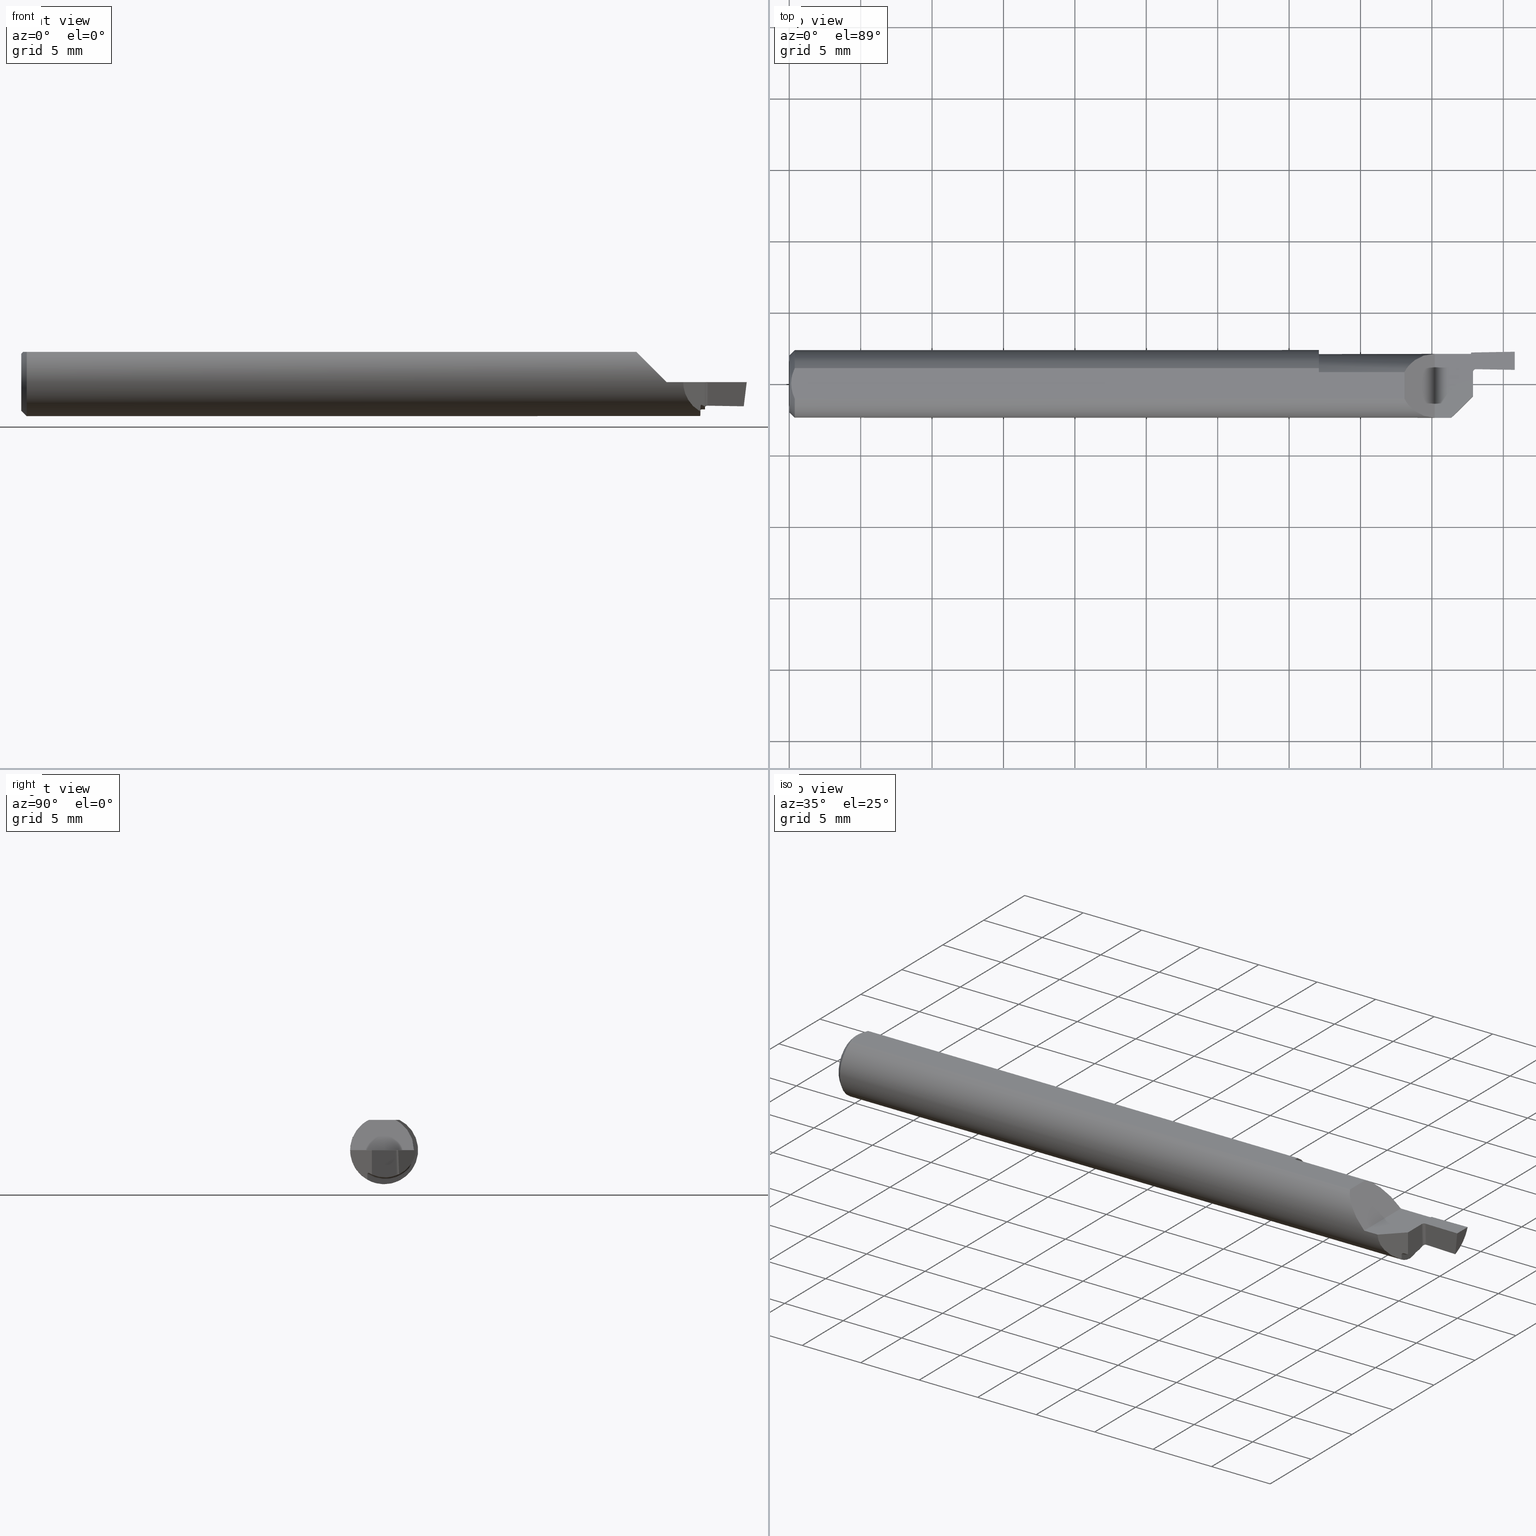
[diagram: canonical four-view strip — front | top / right | iso, engineering-drawing reading convention]
A machine part, canonical four-view strip (front | top / right | iso — engineering-drawing reading convention). The complete STEP part file that produces these views, byte-faithful:
ISO-10303-21;
HEADER;
FILE_DESCRIPTION (( 'STEP AP203' ),
    '1' );
FILE_NAME ('220034-FG187-050.STEP',
    '2024-06-10T22:17:05',
    ( '' ),
    ( '' ),
    'SwSTEP 2.0',
    'SolidWorks 2022',
    '' );
FILE_SCHEMA (( 'CONFIG_CONTROL_DESIGN' ));
ENDSEC;

DATA;
#1 = EDGE_LOOP ( 'NONE', ( #378, #779 ) ) ;
#2 = CC_DESIGN_SECURITY_CLASSIFICATION ( #24, ( #789 ) ) ;
#3 = CARTESIAN_POINT ( 'NONE',  ( 2.130067462402516210, 0.09086957436106303521, 0.000000000000000000 ) ) ;
#4 = CARTESIAN_POINT ( 'NONE',  ( 1.842381308374117843, -0.07621869162588180979, -0.06437630778575331725 ) ) ;
#5 = ORIENTED_EDGE ( 'NONE', *, *, #488, .T. ) ;
#6 = PERSON_AND_ORGANIZATION_ROLE ( 'design_owner' ) ;
#7 = CARTESIAN_POINT ( 'NONE',  ( 1.877454356234554700, 0.07868581796253865113, -0.02676745876224651335 ) ) ;
#8 = CARTESIAN_POINT ( 'NONE',  ( 0.004999999999999748569, -0.007328888879231088525, 0.08360000000000000764 ) ) ;
#9 = CARTESIAN_POINT ( 'NONE',  ( 1.879480238341395992, 0.08194570380678682653, -0.01916159369437606813 ) ) ;
#10 = DIRECTION ( 'NONE',  ( 0.000000000000000000, 0.000000000000000000, -1.000000000000000000 ) ) ;
#11 = ADVANCED_FACE ( 'NONE', ( #420 ), #428, .T. ) ;
#12 = EDGE_CURVE ( 'NONE', #623, #783, #75, .T. ) ;
#13 = ORIENTED_EDGE ( 'NONE', *, *, #96, .T. ) ;
#14 = LOCAL_TIME ( 15, 17, 5.000000000000000000, #782 ) ;
#15 = CIRCLE ( 'NONE', #449, 0.09349999999999999978 ) ;
#16 = CARTESIAN_POINT ( 'NONE',  ( 1.871580214316696633, 0.001935089615156747453, 0.01000000000000000715 ) ) ;
#17 = CYLINDRICAL_SURFACE ( 'NONE', #575, 0.008000000000000024453 ) ;
#18 = ORIENTED_EDGE ( 'NONE', *, *, #688, .F. ) ;
#19 = CC_DESIGN_PERSON_AND_ORGANIZATION_ASSIGNMENT ( #484, #238, ( #85 ) ) ;
#20 = CARTESIAN_POINT ( 'NONE',  ( 0.000000000000000000, 0.000000000000000000, 0.000000000000000000 ) ) ;
#21 = ORIENTED_EDGE ( 'NONE', *, *, #12, .T. ) ;
#22 = DIRECTION ( 'NONE',  ( -1.000000000000000000, 0.000000000000000000, -0.000000000000000000 ) ) ;
#23 = LINE ( 'NONE', #147, #349 ) ;
#24 = SECURITY_CLASSIFICATION ( '', '', #54 ) ;
#25 = ORIENTED_EDGE ( 'NONE', *, *, #44, .F. ) ;
#26 = CARTESIAN_POINT ( 'NONE',  ( 1.695999999999999286, 0.04209513035969836975, 0.08360000000000000764 ) ) ;
#27 = LINE ( 'NONE', #647, #736 ) ;
#28 = ORIENTED_EDGE ( 'NONE', *, *, #532, .T. ) ;
#29 = CARTESIAN_POINT ( 'NONE',  ( 1.877736892538713676, 0.07891052598955439201, -0.02630806589913174676 ) ) ;
#30 = CARTESIAN_POINT ( 'NONE',  ( 1.873167720830783090, -0.04543227916921659115, -0.06324965014238967398 ) ) ;
#31 = VERTEX_POINT ( 'NONE', #801 ) ;
#32 = EDGE_CURVE ( 'NONE', #425, #505, #685, .T. ) ;
#33 = DIRECTION ( 'NONE',  ( -1.000000000000000000, -0.000000000000000000, -0.000000000000000000 ) ) ;
#34 = DIRECTION ( 'NONE',  ( 0.1217869383157124674, -0.03676811390802550705, 0.9918750160455355180 ) ) ;
#35 = APPROVAL_STATUS ( 'not_yet_approved' ) ;
#36 = ORIENTED_EDGE ( 'NONE', *, *, #242, .T. ) ;
#37 = CIRCLE ( 'NONE', #168, 0.09650000000000000244 ) ;
#38 = AXIS2_PLACEMENT_3D ( 'NONE', #419, #490, #303 ) ;
#39 = DIRECTION ( 'NONE',  ( -0.0006094513490877724723, 0.000000000000000000, 0.9999998142845092364 ) ) ;
#40 = CARTESIAN_POINT ( 'NONE',  ( 1.890946300725231843, 0.04276387834010144523, -0.06473958721851220954 ) ) ;
#41 = PERSON_AND_ORGANIZATION ( #383, #373 ) ;
#42 = ORIENTED_EDGE ( 'NONE', *, *, #130, .F. ) ;
#43 = FACE_OUTER_BOUND ( 'NONE', #630, .T. ) ;
#44 = EDGE_CURVE ( 'NONE', #395, #562, #765, .T. ) ;
#45 = CARTESIAN_POINT ( 'NONE',  ( 0.000000000000000000, -0.09360000000000001652, 0.000000000000000000 ) ) ;
#46 = DATE_TIME_ROLE ( 'creation_date' ) ;
#47 = ORIENTED_EDGE ( 'NONE', *, *, #12, .F. ) ;
#48 = CARTESIAN_POINT ( 'NONE',  ( 1.877000000000000002, 0.08559923835978046347, 0.000000000000000000 ) ) ;
#49 = DIRECTION ( 'NONE',  ( -0.000000000000000000, 0.000000000000000000, 1.000000000000000000 ) ) ;
#50 = SHAPE_DEFINITION_REPRESENTATION ( #331, #446 ) ;
#51 = CARTESIAN_POINT ( 'NONE',  ( 1.871630249067014473, 0.07571437546737692925, -0.03530500970831557117 ) ) ;
#52 = DIRECTION ( 'NONE',  ( 0.1218693434051474206, 0.000000000000000000, 0.9925461516413219831 ) ) ;
#53 = DIRECTION ( 'NONE',  ( 1.000000000000000000, 0.000000000000000000, 0.000000000000000000 ) ) ;
#54 = SECURITY_CLASSIFICATION_LEVEL ( 'unclassified' ) ;
#55 = CARTESIAN_POINT ( 'NONE',  ( 0.000000000000000000, 1.054420894065873337E-17, 0.07860000000000036402 ) ) ;
#56 = ORIENTED_EDGE ( 'NONE', *, *, #556, .F. ) ;
#57 = CARTESIAN_POINT ( 'NONE',  ( 1.991833305582842328, 0.04106480613523169620, -0.06651238850473878417 ) ) ;
#58 = CARTESIAN_POINT ( 'NONE',  ( 1.885003195454502123, 0.03271128917178553475, -0.001601214644562217512 ) ) ;
#59 = CARTESIAN_POINT ( 'NONE',  ( 0.000000000000000000, 0.000000000000000000, 0.000000000000000000 ) ) ;
#60 = ORIENTED_EDGE ( 'NONE', *, *, #276, .F. ) ;
#61 = DIRECTION ( 'NONE',  ( 1.000000000000000000, 0.000000000000000000, 0.000000000000000000 ) ) ;
#62 = EDGE_CURVE ( 'NONE', #208, #289, #544, .T. ) ;
#63 = CARTESIAN_POINT ( 'NONE',  ( 0.005981829149300420256, 0.01454044632356572483, 0.08359999999999997988 ) ) ;
#64 = CARTESIAN_POINT ( 'NONE',  ( 1.885042114308334682, 0.03328550148409221282, -0.06910198915179995016 ) ) ;
#65 = VERTEX_POINT ( 'NONE', #69 ) ;
#66 = B_SPLINE_CURVE_WITH_KNOTS ( 'NONE', 3,
 ( #452, #634, #261, #435 ),
 .UNSPECIFIED., .F., .F.,
 ( 4, 4 ),
 ( 1.084202172485504434E-19, 4.492630260420551070E-05 ),
 .UNSPECIFIED. ) ;
#67 = AXIS2_PLACEMENT_3D ( 'NONE', #661, #585, #39 ) ;
#68 = DIRECTION ( 'NONE',  ( 0.01745240643726935284, -0.9998476951563916026, 0.000000000000000000 ) ) ;
#69 = CARTESIAN_POINT ( 'NONE',  ( 1.872420065192024641, -0.04617993480797533828, -0.06605418512658332852 ) ) ;
#70 = ORIENTED_EDGE ( 'NONE', *, *, #461, .T. ) ;
#71 = CARTESIAN_POINT ( 'NONE',  ( 2.000000000000000000, -0.1936000000000000221, 0.000000000000000000 ) ) ;
#72 = EDGE_CURVE ( 'NONE', #77, #456, #390, .T. ) ;
#73 = CARTESIAN_POINT ( 'NONE',  ( 0.000000000000000000, 0.000000000000000000, 0.000000000000000000 ) ) ;
#74 = ORIENTED_EDGE ( 'NONE', *, *, #180, .F. ) ;
#75 =( BOUNDED_CURVE ( )  B_SPLINE_CURVE ( 3, ( #603, #176, #545, #553 ),
 .UNSPECIFIED., .F., .F. ) 
 B_SPLINE_CURVE_WITH_KNOTS ( ( 4, 4 ),
 ( 4.712388980384689674, 5.816717474156034129 ),
 .UNSPECIFIED. ) 
 CURVE ( )  GEOMETRIC_REPRESENTATION_ITEM ( )  RATIONAL_B_SPLINE_CURVE ( ( 1.000000000000000000, 0.9009275347591065852, 0.9009275347591065852, 1.000000000000000000 ) ) 
 REPRESENTATION_ITEM ( '' )  );
#76 = FACE_OUTER_BOUND ( 'NONE', #283, .T. ) ;
#77 = VERTEX_POINT ( 'NONE', #359 ) ;
#78 = LOCAL_TIME ( 15, 17, 5.000000000000000000, #778 ) ;
#79 =( BOUNDED_CURVE ( )  B_SPLINE_CURVE ( 3, ( #762, #707, #158, #769 ),
 .UNSPECIFIED., .F., .F. ) 
 B_SPLINE_CURVE_WITH_KNOTS ( ( 4, 4 ),
 ( 1.980418826327499104, 2.000289064763171254 ),
 .UNSPECIFIED. ) 
 CURVE ( )  GEOMETRIC_REPRESENTATION_ITEM ( )  RATIONAL_B_SPLINE_CURVE ( ( 1.000000000000000000, 0.9999670980726801384, 0.9999670980726801384, 1.000000000000000000 ) ) 
 REPRESENTATION_ITEM ( '' )  );
#80 = AXIS2_PLACEMENT_3D ( 'NONE', #110, #357, #49 ) ;
#81 = DIRECTION ( 'NONE',  ( 1.000000000000000000, 0.000000000000000000, 0.000000000000000000 ) ) ;
#82 = VERTEX_POINT ( 'NONE', #666 ) ;
#83 = DIRECTION ( 'NONE',  ( 0.000000000000000000, 0.000000000000000000, -1.000000000000000000 ) ) ;
#84 = ORIENTED_EDGE ( 'NONE', *, *, #776, .F. ) ;
#85 = PRODUCT_DEFINITION ( 'UNKNOWN', '', #789, #398 ) ;
#86 = LINE ( 'NONE', #327, #525 ) ;
#87 = ORIENTED_EDGE ( 'NONE', *, *, #532, .F. ) ;
#88 = CARTESIAN_POINT ( 'NONE',  ( 1.885042114308334682, 0.03328550148409221282, -0.06910198915179995016 ) ) ;
#89 = LINE ( 'NONE', #287, #274 ) ;
#90 = LOCAL_TIME ( 15, 17, 5.000000000000000000, #163 ) ;
#91 = VECTOR ( 'NONE', #583, 39.37007874015748143 ) ;
#92 = VERTEX_POINT ( 'NONE', #542 ) ;
#93 = CARTESIAN_POINT ( 'NONE',  ( 1.870462673150747879, 0.06595898013322305797, -0.05324312250910651079 ) ) ;
#94 = EDGE_CURVE ( 'NONE', #705, #255, #37, .T. ) ;
#95 = CARTESIAN_POINT ( 'NONE',  ( 1.872420065192024641, -0.04617993480797533828, -0.06605418512658332852 ) ) ;
#96 = EDGE_CURVE ( 'NONE', #448, #320, #114, .T. ) ;
#97 = VERTEX_POINT ( 'NONE', #120 ) ;
#98 = CARTESIAN_POINT ( 'NONE',  ( 1.925716670422003673, 0.04217943965250273847, -0.06538324282787229269 ) ) ;
#99 = CARTESIAN_POINT ( 'NONE',  ( 1.752499999999999503, -0.1660999999999994980, 0.000000000000000000 ) ) ;
#100 = ORIENTED_EDGE ( 'NONE', *, *, #94, .F. ) ;
#101 = DIRECTION ( 'NONE',  ( 0.000000000000000000, 0.000000000000000000, 1.000000000000000000 ) ) ;
#102 = CARTESIAN_POINT ( 'NONE',  ( 1.879999999999999893, 0.08582367866251150446, -0.004848300909651906583 ) ) ;
#103 = PERSON_AND_ORGANIZATION ( #383, #373 ) ;
#104 = VERTEX_POINT ( 'NONE', #55 ) ;
#105 = VECTOR ( 'NONE', #83, 39.37007874015748143 ) ;
#106 = DIRECTION ( 'NONE',  ( 0.000000000000000000, 0.000000000000000000, 1.000000000000000000 ) ) ;
#107 = ORIENTED_EDGE ( 'NONE', *, *, #488, .F. ) ;
#108 = CARTESIAN_POINT ( 'NONE',  ( 1.958606856428357856, 0.04162550046896966449, -0.06596049465712718052 ) ) ;
#109 = CC_DESIGN_PERSON_AND_ORGANIZATION_ASSIGNMENT ( #587, #665, ( #24 ) ) ;
#110 = CARTESIAN_POINT ( 'NONE',  ( 1.885000000000000009, 0.03246571168274756114, -0.09360000000000001652 ) ) ;
#111 = CARTESIAN_POINT ( 'NONE',  ( 0.01206089165507011340, -0.03555991978469319470, 0.08360000000000000764 ) ) ;
#112 = DIRECTION ( 'NONE',  ( -0.7071067811865449082, 0.7071067811865501263, 0.000000000000000000 ) ) ;
#113 = CARTESIAN_POINT ( 'NONE',  ( 0.01499999999999997689, 0.04209513035969836975, 0.08360000000000000764 ) ) ;
#114 = LINE ( 'NONE', #364, #220 ) ;
#115 = AXIS2_PLACEMENT_3D ( 'NONE', #418, #112, #718 ) ;
#116 = LINE ( 'NONE', #365, #385 ) ;
#117 = CARTESIAN_POINT ( 'NONE',  ( 1.885002345047223971, 0.03266061770718906021, -0.002944330584374757562 ) ) ;
#118 = EDGE_CURVE ( 'NONE', #320, #422, #735, .T. ) ;
#119 = ADVANCED_FACE ( 'NONE', ( #245 ), #194, .T. ) ;
#120 = CARTESIAN_POINT ( 'NONE',  ( 1.877335035702857313, -0.04126496429714256869, -0.06314805105255927309 ) ) ;
#121 = ORIENTED_EDGE ( 'NONE', *, *, #330, .F. ) ;
#122 = DIRECTION ( 'NONE',  ( 0.000000000000000000, 0.000000000000000000, 1.000000000000000000 ) ) ;
#123 = B_SPLINE_CURVE_WITH_KNOTS ( 'NONE', 3,
 ( #278, #214, #643, #520, #699, #748 ),
 .UNSPECIFIED., .F., .F.,
 ( 4, 2, 4 ),
 ( 0.000000000000000000, 0.4999999999999996669, 1.000000000000000000 ),
 .UNSPECIFIED. ) ;
#124 = LINE ( 'NONE', #551, #133 ) ;
#125 = CARTESIAN_POINT ( 'NONE',  ( 1.873500086923522323, 0.07823289136696819079, -0.02824476859656738573 ) ) ;
#126 = ORIENTED_EDGE ( 'NONE', *, *, #309, .T. ) ;
#127 = CARTESIAN_POINT ( 'NONE',  ( 1.885005047996913818, 0.03274986387497144658, -0.008282853067503133035 ) ) ;
#128 = CARTESIAN_POINT ( 'NONE',  ( 1.885023767403968487, 0.03310740391871370286, -0.03899802599495066913 ) ) ;
#129 = VERTEX_POINT ( 'NONE', #683 ) ;
#130 = EDGE_CURVE ( 'NONE', #65, #425, #754, .T. ) ;
#131 = EDGE_CURVE ( 'NONE', #92, #623, #86, .T. ) ;
#132 = VECTOR ( 'NONE', #34, 39.37007874015748143 ) ;
#133 = VECTOR ( 'NONE', #53, 39.37007874015748143 ) ;
#134 = DIRECTION ( 'NONE',  ( 0.000000000000000000, 0.000000000000000000, -1.000000000000000000 ) ) ;
#135 = DIRECTION ( 'NONE',  ( -0.9998476951563916026, -0.01745240643726935284, -0.000000000000000000 ) ) ;
#136 = VERTEX_POINT ( 'NONE', #508 ) ;
#137 = CC_DESIGN_DATE_AND_TIME_ASSIGNMENT ( #466, #46, ( #85 ) ) ;
#138 = CARTESIAN_POINT ( 'NONE',  ( 1.871724108065524694, -0.006308577734127043118, -0.09338716103925931433 ) ) ;
#139 = EDGE_LOOP ( 'NONE', ( #56, #148, #183, #750, #409, #743, #157, #259, #698, #653, #240 ) ) ;
#140 = CARTESIAN_POINT ( 'NONE',  ( 2.131540615057358146, 0.006472715288846776771, 0.01000000000000000715 ) ) ;
#141 = ORIENTED_EDGE ( 'NONE', *, *, #118, .T. ) ;
#142 = CIRCLE ( 'NONE', #386, 0.09350000000000002753 ) ;
#143 = DIRECTION ( 'NONE',  ( 0.000000000000000000, -1.000000000000000000, 0.000000000000000000 ) ) ;
#144 = EDGE_CURVE ( 'NONE', #129, #717, #142, .T. ) ;
#145 = VERTEX_POINT ( 'NONE', #387 ) ;
#146 = CARTESIAN_POINT ( 'NONE',  ( 1.879906795082896931, 0.08366373685556707795, -0.01415818277103333793 ) ) ;
#147 = CARTESIAN_POINT ( 'NONE',  ( 1.885239968482530726, 0.04620844948225959897, -0.3937450271037417626 ) ) ;
#148 = ORIENTED_EDGE ( 'NONE', *, *, #131, .T. ) ;
#149 = FACE_OUTER_BOUND ( 'NONE', #201, .T. ) ;
#150 = DIRECTION ( 'NONE',  ( 1.000000000000000000, 0.000000000000000000, 0.000000000000000000 ) ) ;
#151 = VERTEX_POINT ( 'NONE', #572 ) ;
#152 = DIRECTION ( 'NONE',  ( -0.0006090802009083879243, -0.03489418134011375294, 0.9993908270190957621 ) ) ;
#153 = ADVANCED_FACE ( 'NONE', ( #319 ), #442, .F. ) ;
#154 = EDGE_CURVE ( 'NONE', #674, #289, #23, .T. ) ;
#155 = DIRECTION ( 'NONE',  ( -0.9998476951563914916, -0.01745240643726934937, 0.000000000000000000 ) ) ;
#156 = AXIS2_PLACEMENT_3D ( 'NONE', #48, #658, #353 ) ;
#157 = ORIENTED_EDGE ( 'NONE', *, *, #688, .T. ) ;
#158 = CARTESIAN_POINT ( 'NONE',  ( 1.885041859972163669, 0.03433145076579861843, -0.06868466933795884521 ) ) ;
#159 = ORIENTED_EDGE ( 'NONE', *, *, #62, .T. ) ;
#160 = CARTESIAN_POINT ( 'NONE',  ( 1.882378740216782198, -0.03622125978321751733, -0.06591560370331392416 ) ) ;
#161 = CARTESIAN_POINT ( 'NONE',  ( 1.876332689586550639, -0.04226731041344874984, -0.06256523966096286249 ) ) ;
#162 = APPROVAL ( #529, 'UNSPECIFIED' ) ;
#163 = COORDINATED_UNIVERSAL_TIME_OFFSET ( 8, 0, .BEHIND. ) ;
#164 = ORIENTED_EDGE ( 'NONE', *, *, #299, .T. ) ;
#165 = DIRECTION ( 'NONE',  ( -1.000000000000000000, 0.000000000000000000, -0.000000000000000000 ) ) ;
#166 = LINE ( 'NONE', #223, #655 ) ;
#167 = ORIENTED_EDGE ( 'NONE', *, *, #629, .F. ) ;
#168 = AXIS2_PLACEMENT_3D ( 'NONE', #792, #670, #480 ) ;
#169 = CARTESIAN_POINT ( 'NONE',  ( 1.879821615478612706, -0.03877838452138673841, -0.06459386602190773929 ) ) ;
#170 = CARTESIAN_POINT ( 'NONE',  ( 1.660946387129862867, 0.08259923835978047468, 0.000000000000000000 ) ) ;
#171 = APPLICATION_PROTOCOL_DEFINITION ( 'international standard', 'config_control_design', 1994, #578 ) ;
#172 = CARTESIAN_POINT ( 'NONE',  ( 0.01499999999999997689, -0.04209513035969836975, 0.08360000000000000764 ) ) ;
#173 = FACE_OUTER_BOUND ( 'NONE', #269, .T. ) ;
#174 = DIRECTION ( 'NONE',  ( 1.000000000000000000, 0.000000000000000000, 0.000000000000000000 ) ) ;
#175 = CALENDAR_DATE ( 2024, 10, 6 ) ;
#176 = CARTESIAN_POINT ( 'NONE',  ( 1.743269953535348638, -0.09360000000000001652, 0.03633004646465035764 ) ) ;
#177 = ORIENTED_EDGE ( 'NONE', *, *, #627, .F. ) ;
#178 = DIRECTION ( 'NONE',  ( -1.000000000000000000, -0.000000000000000000, -0.000000000000000000 ) ) ;
#179 = EDGE_CURVE ( 'NONE', #562, #65, #336, .T. ) ;
#180 = EDGE_CURVE ( 'NONE', #217, #425, #799, .T. ) ;
#181 = DIRECTION ( 'NONE',  ( 0.000000000000000000, 0.000000000000000000, -1.000000000000000000 ) ) ;
#182 = CARTESIAN_POINT ( 'NONE',  ( 1.870462673150747879, 0.06595898013322305797, -0.05324312250910651079 ) ) ;
#183 = ORIENTED_EDGE ( 'NONE', *, *, #413, .F. ) ;
#184 = CARTESIAN_POINT ( 'NONE',  ( 1.695999999999999286, 0.03097154424326387101, 0.08360000000000000764 ) ) ;
#185 = CARTESIAN_POINT ( 'NONE',  ( 1.875240176068755815, 0.07874946376246647062, -0.02655347595414943307 ) ) ;
#186 = ORIENTED_EDGE ( 'NONE', *, *, #712, .T. ) ;
#187 =( BOUNDED_CURVE ( )  B_SPLINE_CURVE ( 3, ( #646, #98, #108, #57 ),
 .UNSPECIFIED., .F., .F. ) 
 B_SPLINE_CURVE_WITH_KNOTS ( ( 4, 4 ),
 ( 1.110317694224965068, 1.155031842171919232 ),
 .UNSPECIFIED. ) 
 CURVE ( )  GEOMETRIC_REPRESENTATION_ITEM ( )  RATIONAL_B_SPLINE_CURVE ( ( 1.000000000000000000, 0.9998333940209653825, 0.9998333940209653825, 1.000000000000000000 ) ) 
 REPRESENTATION_ITEM ( '' )  );
#188 = FACE_OUTER_BOUND ( 'NONE', #620, .T. ) ;
#189 = CARTESIAN_POINT ( 'NONE',  ( 1.872373559742896321, 0.07704879319694681039, -0.03176034832322011808 ) ) ;
#190 = EDGE_CURVE ( 'NONE', #395, #717, #66, .T. ) ;
#191 = ADVANCED_FACE ( 'NONE', ( #76 ), #682, .T. ) ;
#192 = VERTEX_POINT ( 'NONE', #200 ) ;
#193 = PLANE ( 'NONE',  #397 ) ;
#194 = CYLINDRICAL_SURFACE ( 'NONE', #286, 0.09349999999999999978 ) ;
#195 = AXIS2_PLACEMENT_3D ( 'NONE', #650, #178, #101 ) ;
#196 = VECTOR ( 'NONE', #321, 39.37007874015748143 ) ;
#197 = CARTESIAN_POINT ( 'NONE',  ( 0.000000000000000000, 0.000000000000000000, 0.000000000000000000 ) ) ;
#198 = CARTESIAN_POINT ( 'NONE',  ( 0.000000000000000000, 0.000000000000000000, 0.000000000000000000 ) ) ;
#199 = EDGE_LOOP ( 'NONE', ( #429, #392, #374, #225, #494, #21, #5, #676, #141, #326 ) ) ;
#200 = CARTESIAN_POINT ( 'NONE',  ( 1.459999999999999964, 0.04209513035969836975, 0.08360000000000000764 ) ) ;
#201 = EDGE_LOOP ( 'NONE', ( #328, #747, #13, #496, #355 ) ) ;
#202 = ADVANCED_FACE ( 'NONE', ( #382 ), #447, .T. ) ;
#203 = CARTESIAN_POINT ( 'NONE',  ( 1.871724108065524694, -0.006308577734127043118, -0.09338716103925931433 ) ) ;
#204 = AXIS2_PLACEMENT_3D ( 'NONE', #512, #209, #68 ) ;
#205 = AXIS2_PLACEMENT_3D ( 'NONE', #198, #324, #444 ) ;
#206 = DIRECTION ( 'NONE',  ( -1.000000000000000000, -0.000000000000000000, -0.000000000000000000 ) ) ;
#207 = B_SPLINE_CURVE_WITH_KNOTS ( 'NONE', 3,
 ( #95, #465, #340, #30, #711, #410, #161, #408 ),
 .UNSPECIFIED., .F., .F.,
 ( 4, 2, 2, 4 ),
 ( 4.336808689942017736E-19, 5.824195563867833205E-05, 0.0001164839112773562304, 0.0002329678225546977970 ),
 .UNSPECIFIED. ) ;
#208 = VERTEX_POINT ( 'NONE', #626 ) ;
#209 = DIRECTION ( 'NONE',  ( -0.9998476951563914916, -0.01745240643726934937, 0.000000000000000000 ) ) ;
#210 = CARTESIAN_POINT ( 'NONE',  ( 1.885853314313149287, 0.03888714911310028194, -0.06668735181059826100 ) ) ;
#211 = EDGE_CURVE ( 'NONE', #635, #192, #423, .T. ) ;
#212 = ORIENTED_EDGE ( 'NONE', *, *, #776, .T. ) ;
#213 = EDGE_CURVE ( 'NONE', #104, #448, #272, .T. ) ;
#214 = CARTESIAN_POINT ( 'NONE',  ( 1.891046502187419209, 0.04050102873825435490, 4.581668740900012110E-18 ) ) ;
#215 = DIRECTION ( 'NONE',  ( -0.000000000000000000, -0.000000000000000000, 1.000000000000000000 ) ) ;
#216 = PRODUCT ( '220034-FG187-050', '220034-FG187-050', '', ( #672 ) ) ;
#217 = VERTEX_POINT ( 'NONE', #138 ) ;
#218 = DIRECTION ( 'NONE',  ( 0.000000000000000000, -0.9993910123954978797, -0.03489418781261292152 ) ) ;
#219 = VECTOR ( 'NONE', #549, 39.37007874015748143 ) ;
#220 = VECTOR ( 'NONE', #608, 39.37007874015748854 ) ;
#221 = ORIENTED_EDGE ( 'NONE', *, *, #322, .T. ) ;
#222 = DIRECTION ( 'NONE',  ( 0.9998476951563912696, -0.01745240643727494559, 0.000000000000000000 ) ) ;
#223 = CARTESIAN_POINT ( 'NONE',  ( 0.000000000000000000, 9.625723841298240530E-18, 0.07860000000000036402 ) ) ;
#224 = CALENDAR_DATE ( 2024, 10, 6 ) ;
#225 = ORIENTED_EDGE ( 'NONE', *, *, #32, .T. ) ;
#226 = CARTESIAN_POINT ( 'NONE',  ( 0.01499999999999997689, 0.000000000000000000, 0.000000000000000000 ) ) ;
#227 = CC_DESIGN_PERSON_AND_ORGANIZATION_ASSIGNMENT ( #314, #6, ( #216 ) ) ;
#228 = CARTESIAN_POINT ( 'NONE',  ( 1.885041728067555100, 0.03485126371462579642, -0.06846823765010949525 ) ) ;
#229 = CALENDAR_DATE ( 2024, 10, 6 ) ;
#230 = ORIENTED_EDGE ( 'NONE', *, *, #439, .T. ) ;
#231 = PLANE ( 'NONE',  #628 ) ;
#232 = CARTESIAN_POINT ( 'NONE',  ( 1.459999999999999964, -0.1936000000000000221, 0.08360000000000000764 ) ) ;
#233 = TOROIDAL_SURFACE ( 'NONE', #195, 0.09650000000000000244, 0.002999999999999957562 ) ;
#234 = ORIENTED_EDGE ( 'NONE', *, *, #726, .F. ) ;
#235 = AXIS2_PLACEMENT_3D ( 'NONE', #305, #797, #367 ) ;
#236 = AXIS2_PLACEMENT_3D ( 'NONE', #279, #403, #781 ) ;
#237 = CARTESIAN_POINT ( 'NONE',  ( 1.893179186668699554, 0.04272634681709096272, -0.06478092153779257956 ) ) ;
#238 = PERSON_AND_ORGANIZATION_ROLE ( 'creator' ) ;
#239 = CARTESIAN_POINT ( 'NONE',  ( 1.874146761554601692, 0.07856775369816737520, -0.02716045060236167014 ) ) ;
#240 = ORIENTED_EDGE ( 'NONE', *, *, #757, .F. ) ;
#241 = PLANE ( 'NONE',  #574 ) ;
#242 = EDGE_CURVE ( 'NONE', #671, #151, #380, .T. ) ;
#243 = CARTESIAN_POINT ( 'NONE',  ( 1.872420065192024641, -0.04617993480797533828, -0.08141482433274142838 ) ) ;
#244 = APPROVAL_DATE_TIME ( #344, #597 ) ;
#245 = FACE_OUTER_BOUND ( 'NONE', #308, .T. ) ;
#246 = ORIENTED_EDGE ( 'NONE', *, *, #154, .F. ) ;
#247 =( BOUNDED_CURVE ( )  B_SPLINE_CURVE ( 3, ( #598, #102, #350, #354 ),
 .UNSPECIFIED., .F., .F. ) 
 B_SPLINE_CURVE_WITH_KNOTS ( ( 4, 4 ),
 ( 2.937281458114340715, 3.023672501564544035 ),
 .UNSPECIFIED. ) 
 CURVE ( )  GEOMETRIC_REPRESENTATION_ITEM ( )  RATIONAL_B_SPLINE_CURVE ( ( 1.000000000000000000, 0.9993781456673893615, 0.9993781456673893615, 1.000000000000000000 ) ) 
 REPRESENTATION_ITEM ( '' )  );
#248 = CARTESIAN_POINT ( 'NONE',  ( 1.996384470758674867, 0.08504712212685056061, -0.02944612266182080815 ) ) ;
#249 = DIRECTION ( 'NONE',  ( -1.000000000000000000, -0.000000000000000000, -0.000000000000000000 ) ) ;
#250 = EDGE_LOOP ( 'NONE', ( #612, #412, #262, #649 ) ) ;
#251 =( NAMED_UNIT ( * ) PLANE_ANGLE_UNIT ( ) SI_UNIT ( $, .RADIAN. ) );
#252 = EDGE_CURVE ( 'NONE', #705, #338, #631, .T. ) ;
#253 = CARTESIAN_POINT ( 'NONE',  ( 1.885004234609787943, 0.03272697828336858933, -0.006948231403011125365 ) ) ;
#254 = CARTESIAN_POINT ( 'NONE',  ( 1.824999999999999289, -0.09360000000000003040, -0.03453459073577250238 ) ) ;
#255 = VERTEX_POINT ( 'NONE', #506 ) ;
#256 = FACE_OUTER_BOUND ( 'NONE', #267, .T. ) ;
#257 = APPROVAL ( #35, 'UNSPECIFIED' ) ;
#258 = CARTESIAN_POINT ( 'NONE',  ( 0.005975039161239103364, -0.01453776427033152789, 0.08360000000000000764 ) ) ;
#259 = ORIENTED_EDGE ( 'NONE', *, *, #607, .T. ) ;
#260 = LINE ( 'NONE', #26, #550 ) ;
#261 = CARTESIAN_POINT ( 'NONE',  ( 1.876413382923763251, 0.07871577950490736553, -0.02666700288578795208 ) ) ;
#262 = ORIENTED_EDGE ( 'NONE', *, *, #276, .T. ) ;
#263 = DIRECTION ( 'NONE',  ( 0.000000000000000000, 1.000000000000000000, 0.000000000000000000 ) ) ;
#264 = ORIENTED_EDGE ( 'NONE', *, *, #154, .T. ) ;
#265 = ADVANCED_FACE ( 'NONE', ( #692 ), #17, .F. ) ;
#266 = DIRECTION ( 'NONE',  ( 1.000000000000000000, 0.000000000000000000, 0.000000000000000000 ) ) ;
#267 = EDGE_LOOP ( 'NONE', ( #645, #588, #177, #47 ) ) ;
#268 = DIRECTION ( 'NONE',  ( -1.000000000000000000, -0.000000000000000000, -0.000000000000000000 ) ) ;
#269 = EDGE_LOOP ( 'NONE', ( #729, #42, #788, #680, #221, #121 ) ) ;
#270 = DIRECTION ( 'NONE',  ( 1.000000000000000000, 0.000000000000000000, 0.000000000000000000 ) ) ;
#271 = AXIS2_PLACEMENT_3D ( 'NONE', #523, #33, #774 ) ;
#272 = CIRCLE ( 'NONE', #205, 0.07860000000000036402 ) ;
#273 = EDGE_CURVE ( 'NONE', #555, #400, #700, .T. ) ;
#274 = VECTOR ( 'NONE', #766, 39.37007874015748143 ) ;
#275 = CARTESIAN_POINT ( 'NONE',  ( 1.872420065192024641, -0.04617993480797533828, -0.08141482433274142838 ) ) ;
#276 = EDGE_CURVE ( 'NONE', #31, #145, #462, .T. ) ;
#277 = ORIENTED_EDGE ( 'NONE', *, *, #757, .T. ) ;
#278 = CARTESIAN_POINT ( 'NONE',  ( 1.893139705841341058, 0.04046449173256733839, 5.335640612625514099E-18 ) ) ;
#279 = CARTESIAN_POINT ( 'NONE',  ( 1.876579452792478842, 0.002022351647343094850, 0.01000000000000000715 ) ) ;
#280 = ORIENTED_EDGE ( 'NONE', *, *, #273, .T. ) ;
#281 = CARTESIAN_POINT ( 'NONE',  ( 1.779599999999998516, -0.09360000000000001652, 0.000000000000000000 ) ) ;
#282 = CARTESIAN_POINT ( 'NONE',  ( 1.885000000000000009, 0.03246571168274756114, -0.09360000000000001652 ) ) ;
#283 = EDGE_LOOP ( 'NONE', ( #771, #573, #87, #570, #459 ) ) ;
#284 = DIRECTION ( 'NONE',  ( 0.7071067811865515695, -0.000000000000000000, 0.7071067811865434649 ) ) ;
#285 = CIRCLE ( 'NONE', #770, 0.09360000000000001652 ) ;
#286 = AXIS2_PLACEMENT_3D ( 'NONE', #510, #268, #622 ) ;
#287 = CARTESIAN_POINT ( 'NONE',  ( 1.668499999999999872, -0.006308577734120256013, -0.09338716103925938372 ) ) ;
#288 = APPROVAL_DATE_TIME ( #791, #162 ) ;
#289 = VERTEX_POINT ( 'NONE', #586 ) ;
#290 = CARTESIAN_POINT ( 'NONE',  ( 1.888799021835868786, 0.04184516313073156912, -0.06522770777822256560 ) ) ;
#291 = DATE_TIME_ROLE ( 'classification_date' ) ;
#292 = EDGE_LOOP ( 'NONE', ( #126, #264, #352 ) ) ;
#293 = CARTESIAN_POINT ( 'NONE',  ( 1.893139705841341058, 0.04046449173256733839, 5.335640612625514099E-18 ) ) ;
#294 = CARTESIAN_POINT ( 'NONE',  ( 0.01499999999999997689, -0.04209513035969836975, 0.08360000000000000764 ) ) ;
#295 = PERSON_AND_ORGANIZATION_ROLE ( 'design_supplier' ) ;
#296 = ORIENTED_EDGE ( 'NONE', *, *, #404, .T. ) ;
#297 = CARTESIAN_POINT ( 'NONE',  ( 1.885000000000000009, -0.03360000000000001180, -0.06710995091099943022 ) ) ;
#298 = CARTESIAN_POINT ( 'NONE',  ( 0.01499999999999997689, 0.04209513035969836975, 0.08360000000000000764 ) ) ;
#299 = EDGE_CURVE ( 'NONE', #97, #395, #301, .T. ) ;
#300 = CC_DESIGN_APPROVAL ( #257, ( #24 ) ) ;
#301 = CIRCLE ( 'NONE', #236, 0.08499999999999999223 ) ;
#302 = CARTESIAN_POINT ( 'NONE',  ( 1.884999999999999787, 0.01073742997542036226, -0.07770545321520958004 ) ) ;
#303 = DIRECTION ( 'NONE',  ( 0.000000000000000000, -0.03490480639812536257, 0.9993906415863165194 ) ) ;
#304 = APPROVAL_ROLE ( '' ) ;
#305 = CARTESIAN_POINT ( 'NONE',  ( 0.01499999999999997689, 0.000000000000000000, 0.000000000000000000 ) ) ;
#306 = DIRECTION ( 'NONE',  ( -0.0006090802009083879243, -0.03489418134011375294, 0.9993908270190957621 ) ) ;
#307 = CARTESIAN_POINT ( 'NONE',  ( 1.885001483111416798, 0.03261543361698410193, -0.0002790132549058294562 ) ) ;
#308 = EDGE_LOOP ( 'NONE', ( #36, #687, #445, #538, #793, #701, #507, #641, #341 ) ) ;
#309 = EDGE_CURVE ( 'NONE', #208, #674, #79, .T. ) ;
#310 = CARTESIAN_POINT ( 'NONE',  ( 0.004999999999999745967, 0.007308422719211837837, 0.08360000000000000764 ) ) ;
#311 = EDGE_LOOP ( 'NONE', ( #694, #535, #595, #74 ) ) ;
#312 =( GEOMETRIC_REPRESENTATION_CONTEXT ( 3 ) GLOBAL_UNCERTAINTY_ASSIGNED_CONTEXT ( ( #527 ) ) GLOBAL_UNIT_ASSIGNED_CONTEXT ( ( #744, #251, #426 ) ) REPRESENTATION_CONTEXT ( 'NONE', 'WORKASPACE' ) );
#313 = VECTOR ( 'NONE', #263, 39.37007874015748143 ) ;
#314 = PERSON_AND_ORGANIZATION ( #383, #373 ) ;
#315 = CC_DESIGN_DATE_AND_TIME_ASSIGNMENT ( #594, #291, ( #24 ) ) ;
#316 = FACE_OUTER_BOUND ( 'NONE', #530, .T. ) ;
#317 = EDGE_LOOP ( 'NONE', ( #454, #230, #486 ) ) ;
#318 = PLANE ( 'NONE',  #704 ) ;
#319 = FACE_OUTER_BOUND ( 'NONE', #1, .T. ) ;
#320 = VERTEX_POINT ( 'NONE', #394 ) ;
#321 = DIRECTION ( 'NONE',  ( 1.000000000000000000, 0.000000000000000000, 0.000000000000000000 ) ) ;
#322 = EDGE_CURVE ( 'NONE', #753, #82, #27, .T. ) ;
#323 = ORIENTED_EDGE ( 'NONE', *, *, #615, .F. ) ;
#324 = DIRECTION ( 'NONE',  ( -1.000000000000000000, -0.000000000000000000, -0.000000000000000000 ) ) ;
#325 =( BOUNDED_CURVE ( )  B_SPLINE_CURVE ( 3, ( #731, #601, #248, #605 ),
 .UNSPECIFIED., .F., .F. ) 
 B_SPLINE_CURVE_WITH_KNOTS ( ( 4, 4 ),
 ( 0.5918849884698033081, 1.594068833761937753 ),
 .UNSPECIFIED. ) 
 CURVE ( )  GEOMETRIC_REPRESENTATION_ITEM ( )  RATIONAL_B_SPLINE_CURVE ( ( 1.000000000000000000, 0.9180390288153784661, 0.9180390288153784661, 1.000000000000000000 ) ) 
 REPRESENTATION_ITEM ( '' )  );
#326 = ORIENTED_EDGE ( 'NONE', *, *, #470, .T. ) ;
#327 = CARTESIAN_POINT ( 'NONE',  ( 1.779599999999998516, -0.1936000000000000221, 0.000000000000000000 ) ) ;
#328 = ORIENTED_EDGE ( 'NONE', *, *, #388, .F. ) ;
#329 = CYLINDRICAL_SURFACE ( 'NONE', #695, 0.007999999999999840572 ) ;
#330 = EDGE_CURVE ( 'NONE', #505, #82, #516, .T. ) ;
#332 = EDGE_CURVE ( 'NONE', #674, #723, #440, .T. ) ;
#331 = PRODUCT_DEFINITION_SHAPE ( 'NONE', 'NONE',  #85 ) ;
#333 = CARTESIAN_POINT ( 'NONE',  ( 1.877000000000000002, -0.01090076164021952856, 0.000000000000000000 ) ) ;
#334 = ORIENTED_EDGE ( 'NONE', *, *, #144, .F. ) ;
#335 = CARTESIAN_POINT ( 'NONE',  ( 1.878661346960925238, 0.07996302675583565056, -0.02403651425720983864 ) ) ;
#336 = CIRCLE ( 'NONE', #773, 0.08999999999999999667 ) ;
#337 = VECTOR ( 'NONE', #677, 39.37007874015748143 ) ;
#338 = VERTEX_POINT ( 'NONE', #343 ) ;
#339 = PLANE ( 'NONE',  #526 ) ;
#340 = CARTESIAN_POINT ( 'NONE',  ( 1.872549157987033031, -0.04605084201296720525, -0.06450983406471098858 ) ) ;
#341 = ORIENTED_EDGE ( 'NONE', *, *, #712, .F. ) ;
#342 = CARTESIAN_POINT ( 'NONE',  ( 1.885041728067555100, 0.03485126371462579642, -0.06846823765010949525 ) ) ;
#343 = CARTESIAN_POINT ( 'NONE',  ( 1.879999999999999893, 0.08650463056839603759, 0.000000000000000000 ) ) ;
#344 = DATE_AND_TIME ( #669, #90 ) ;
#345 = ORIENTED_EDGE ( 'NONE', *, *, #675, .F. ) ;
#346 = EDGE_CURVE ( 'NONE', #217, #635, #89, .T. ) ;
#347 = CARTESIAN_POINT ( 'NONE',  ( 1.459999999999999964, -0.01090076164021952856, 0.000000000000000000 ) ) ;
#348 = VECTOR ( 'NONE', #222, 39.37007874015748854 ) ;
#349 = VECTOR ( 'NONE', #752, 39.37007874015748143 ) ;
#350 = CARTESIAN_POINT ( 'NONE',  ( 1.879999999999999893, 0.08621652695610389217, -0.002431503996481865996 ) ) ;
#351 = COORDINATED_UNIVERSAL_TIME_OFFSET ( 8, 0, .BEHIND. ) ;
#352 = ORIENTED_EDGE ( 'NONE', *, *, #62, .F. ) ;
#353 = DIRECTION ( 'NONE',  ( -1.000000000000000000, 0.000000000000000000, 0.000000000000000000 ) ) ;
#354 = CARTESIAN_POINT ( 'NONE',  ( 1.879999999999999893, 0.08650463056839603759, 0.000000000000000000 ) ) ;
#355 = ORIENTED_EDGE ( 'NONE', *, *, #72, .F. ) ;
#356 = FACE_OUTER_BOUND ( 'NONE', #317, .T. ) ;
#357 = DIRECTION ( 'NONE',  ( -1.000000000000000000, 0.000000000000000000, -0.000000000000000000 ) ) ;
#358 = PERSON_AND_ORGANIZATION_ROLE ( 'creator' ) ;
#359 = CARTESIAN_POINT ( 'NONE',  ( 0.004999999999999758110, 1.025183009042025117E-17, 0.08360000000000000764 ) ) ;
#360 = LINE ( 'NONE', #414, #348 ) ;
#361 = DIRECTION ( 'NONE',  ( 0.9998476951563914916, 0.01745240643726934937, 0.000000000000000000 ) ) ;
#362 = DATE_AND_TIME ( #471, #14 ) ;
#363 = LOCAL_TIME ( 15, 17, 5.000000000000000000, #351 ) ;
#364 = CARTESIAN_POINT ( 'NONE',  ( 0.000000000000000000, 0.000000000000000000, -0.07860000000000036402 ) ) ;
#365 = CARTESIAN_POINT ( 'NONE',  ( 1.893379501196029491, 0.05420235840190346099, -0.3934609555193290253 ) ) ;
#366 = CARTESIAN_POINT ( 'NONE',  ( 1.893000000000000016, 0.03246571168274756114, 0.000000000000000000 ) ) ;
#367 = DIRECTION ( 'NONE',  ( 0.000000000000000000, 0.000000000000000000, -1.000000000000000000 ) ) ;
#368 =( LENGTH_UNIT ( ) NAMED_UNIT ( * ) SI_UNIT ( $, .METRE. ) );
#369 = LINE ( 'NONE', #3, #375 ) ;
#370 = CARTESIAN_POINT ( 'NONE',  ( 1.870578679361300622, 0.07143827578441207249, -0.04459544756415650263 ) ) ;
#371 = LINE ( 'NONE', #232, #591 ) ;
#372 = CARTESIAN_POINT ( 'NONE',  ( 1.885011407325960509, 0.03292879098478893735, -0.01871736580621893159 ) ) ;
#373 = ORGANIZATION ( 'UNSPECIFIED', 'UNSPECIFIED', '' ) ;
#374 = ORIENTED_EDGE ( 'NONE', *, *, #180, .T. ) ;
#375 = VECTOR ( 'NONE', #361, 39.37007874015748854 ) ;
#376 = FACE_OUTER_BOUND ( 'NONE', #405, .T. ) ;
#377 = DIRECTION ( 'NONE',  ( 0.000000000000000000, 0.000000000000000000, -1.000000000000000000 ) ) ;
#378 = ORIENTED_EDGE ( 'NONE', *, *, #663, .T. ) ;
#379 = ADVANCED_FACE ( 'NONE', ( #458 ), #716, .F. ) ;
#380 = LINE ( 'NONE', #624, #196 ) ;
#381 = ORIENTED_EDGE ( 'NONE', *, *, #94, .T. ) ;
#382 = FACE_OUTER_BOUND ( 'NONE', #740, .T. ) ;
#383 = PERSON ( 'UNSPECIFIED', 'UNSPECIFIED', 'UNSPECIFIED', ('UNSPECIFIED'), ('UNSPECIFIED'), ('UNSPECIFIED') ) ;
#384 = ORIENTED_EDGE ( 'NONE', *, *, #242, .F. ) ;
#385 = VECTOR ( 'NONE', #306, 39.37007874015748143 ) ;
#386 = AXIS2_PLACEMENT_3D ( 'NONE', #333, #206, #569 ) ;
#387 = CARTESIAN_POINT ( 'NONE',  ( 1.885000000000000009, 0.03246571168274756114, 0.000000000000000000 ) ) ;
#388 = EDGE_CURVE ( 'NONE', #104, #77, #166, .T. ) ;
#389 = CARTESIAN_POINT ( 'NONE',  ( 1.878280301417292630, 0.07943458506555330090, -0.02519866360979080080 ) ) ;
#390 = B_SPLINE_CURVE_WITH_KNOTS ( 'NONE', 3,
 ( #559, #8, #258, #499, #111, #172 ),
 .UNSPECIFIED., .F., .F.,
 ( 4, 2, 4 ),
 ( 0.002614097267282436323, 0.003163218599391053043, 0.003712339931499670197 ),
 .UNSPECIFIED. ) ;
#391 = CARTESIAN_POINT ( 'NONE',  ( 1.872420065192024641, -0.04617993480797533828, 0.01000000000000000715 ) ) ;
#392 = ORIENTED_EDGE ( 'NONE', *, *, #346, .F. ) ;
#393 = CARTESIAN_POINT ( 'NONE',  ( 1.893239966996806745, 0.04620844948225959897, -0.3937401514929490531 ) ) ;
#394 = CARTESIAN_POINT ( 'NONE',  ( 0.01499999999999997689, 0.000000000000000000, -0.09360000000000003040 ) ) ;
#395 = VERTEX_POINT ( 'NONE', #521 ) ;
#396 = FACE_OUTER_BOUND ( 'NONE', #467, .T. ) ;
#397 = AXIS2_PLACEMENT_3D ( 'NONE', #633, #284, #784 ) ;
#398 = DESIGN_CONTEXT ( 'detailed design', #578, 'design' ) ;
#399 = DIRECTION ( 'NONE',  ( 0.7071067811865546782, 8.659560562354842879E-17, 0.7071067811865402453 ) ) ;
#400 = VERTEX_POINT ( 'NONE', #644 ) ;
#401 = CARTESIAN_POINT ( 'NONE',  ( 1.779999999999999805, -0.1936000000000000221, 0.000000000000000000 ) ) ;
#402 = EDGE_CURVE ( 'NONE', #65, #97, #207, .T. ) ;
#403 = DIRECTION ( 'NONE',  ( 0.9998476951563914916, 0.01745240643726934937, -0.000000000000000000 ) ) ;
#404 = EDGE_CURVE ( 'NONE', #255, #338, #247, .T. ) ;
#405 = EDGE_LOOP ( 'NONE', ( #798, #566, #473, #463, #246 ) ) ;
#406 = FACE_OUTER_BOUND ( 'NONE', #485, .T. ) ;
#407 =( BOUNDED_CURVE ( )  B_SPLINE_CURVE ( 3, ( #93, #560, #761, #460 ),
 .UNSPECIFIED., .F., .F. ) 
 B_SPLINE_CURVE_WITH_KNOTS ( ( 4, 4 ),
 ( 0.6058307341752490194, 1.521662293291339285 ),
 .UNSPECIFIED. ) 
 CURVE ( )  GEOMETRIC_REPRESENTATION_ITEM ( )  RATIONAL_B_SPLINE_CURVE ( ( 1.000000000000000000, 0.9313172242408496171, 0.9313172242408496171, 1.000000000000000000 ) ) 
 REPRESENTATION_ITEM ( '' )  );
#408 = CARTESIAN_POINT ( 'NONE',  ( 1.877335035702857313, -0.04126496429714256869, -0.06314805105255927309 ) ) ;
#409 = ORIENTED_EDGE ( 'NONE', *, *, #787, .T. ) ;
#410 = CARTESIAN_POINT ( 'NONE',  ( 1.875230915640750506, -0.04336908435924949345, -0.06220614165081869013 ) ) ;
#411 = AXIS2_PLACEMENT_3D ( 'NONE', #703, #155, #528 ) ;
#412 = ORIENTED_EDGE ( 'NONE', *, *, #726, .T. ) ;
#413 = EDGE_CURVE ( 'NONE', #505, #623, #651, .T. ) ;
#414 = CARTESIAN_POINT ( 'NONE',  ( 1.784118827304627564, 0.04236745824595606474, 0.000000000000000000 ) ) ;
#415 = ADVANCED_FACE ( 'NONE', ( #188 ), #795, .F. ) ;
#416 = PLANE ( 'NONE',  #720 ) ;
#417 = CARTESIAN_POINT ( 'NONE',  ( 1.873968698813473832, 0.07848625198081335408, -0.02742796125823298084 ) ) ;
#418 = CARTESIAN_POINT ( 'NONE',  ( 1.885000000000000009, -0.03360000000000001180, -0.09360000000000001652 ) ) ;
#419 = CARTESIAN_POINT ( 'NONE',  ( 1.893379501196029491, 0.05420235840190346099, -0.3934609555193290253 ) ) ;
#420 = FACE_OUTER_BOUND ( 'NONE', #199, .T. ) ;
#421 = LINE ( 'NONE', #659, #337 ) ;
#422 = VERTEX_POINT ( 'NONE', #298 ) ;
#423 = CIRCLE ( 'NONE', #552, 0.09360000000000001652 ) ;
#424 = AXIS2_PLACEMENT_3D ( 'NONE', #197, #681, #706 ) ;
#425 = VERTEX_POINT ( 'NONE', #243 ) ;
#426 =( NAMED_UNIT ( * ) SI_UNIT ( $, .STERADIAN. ) SOLID_ANGLE_UNIT ( ) );
#427 = CARTESIAN_POINT ( 'NONE',  ( 0.009492654797564087366, 0.02859466010166635333, 0.08360000000000000764 ) ) ;
#428 = CYLINDRICAL_SURFACE ( 'NONE', #617, 0.09360000000000001652 ) ;
#429 = ORIENTED_EDGE ( 'NONE', *, *, #211, .F. ) ;
#430 = CARTESIAN_POINT ( 'NONE',  ( 0.000000000000000000, -0.1936000000000000221, 0.08360000000000000764 ) ) ;
#431 = CARTESIAN_POINT ( 'NONE',  ( 1.874913749179887512, 0.07875882808791800915, -0.02652185998459062263 ) ) ;
#432 = ORIENTED_EDGE ( 'NONE', *, *, #299, .F. ) ;
#433 = LENGTH_MEASURE_WITH_UNIT ( LENGTH_MEASURE( 0.02539999999999999897 ), #368 );
#434 = CARTESIAN_POINT ( 'NONE',  ( 1.885000000000000009, 0.03274173049194923496, -0.06931393593643703221 ) ) ;
#435 = CARTESIAN_POINT ( 'NONE',  ( 1.877000000000000002, 0.07869889535216138821, -0.02672361253363190678 ) ) ;
#436 = LOCAL_TIME ( 15, 17, 5.000000000000000000, #713 ) ;
#437 = CLOSED_SHELL ( 'NONE', ( #191, #438, #11, #580, #639, #379, #202, #638, #153, #579, #751, #517, #265, #568, #415, #662, #710, #614, #689, #775, #119 ) ) ;
#438 = ADVANCED_FACE ( 'NONE', ( #721 ), #416, .F. ) ;
#439 = EDGE_CURVE ( 'NONE', #555, #599, #325, .T. ) ;
#440 = B_SPLINE_CURVE_WITH_KNOTS ( 'NONE', 3,
 ( #228, #469, #210, #290, #40, #640 ),
 .UNSPECIFIED., .F., .F.,
 ( 4, 2, 4 ),
 ( 0.000000000000000000, 0.0001673309358998411722, 0.0003346618717996823443 ),
 .UNSPECIFIED. ) ;
#441 = DIRECTION ( 'NONE',  ( 0.000000000000000000, 1.000000000000000000, 0.000000000000000000 ) ) ;
#442 = PLANE ( 'NONE',  #590 ) ;
#443 = ORIENTED_EDGE ( 'NONE', *, *, #332, .F. ) ;
#444 = DIRECTION ( 'NONE',  ( 0.000000000000000000, 0.000000000000000000, -1.000000000000000000 ) ) ;
#445 = ORIENTED_EDGE ( 'NONE', *, *, #556, .T. ) ;
#446 = ADVANCED_BREP_SHAPE_REPRESENTATION ( '220034-FG187-050', ( #593, #491 ), #312 ) ;
#447 = CYLINDRICAL_SURFACE ( 'NONE', #450, 0.08500000000000001998 ) ;
#448 = VERTEX_POINT ( 'NONE', #537 ) ;
#449 = AXIS2_PLACEMENT_3D ( 'NONE', #347, #589, #106 ) ;
#450 = AXIS2_PLACEMENT_3D ( 'NONE', #140, #135, #503 ) ;
#451 = CONICAL_SURFACE ( 'NONE', #424, 0.07860000000000036402, 0.7853981633974380649 ) ;
#452 = CARTESIAN_POINT ( 'NONE',  ( 1.875240176068755815, 0.07874946376246647062, -0.02655347595414943307 ) ) ;
#453 = CC_DESIGN_PERSON_AND_ORGANIZATION_ASSIGNMENT ( #652, #358, ( #789 ) ) ;
#454 = ORIENTED_EDGE ( 'NONE', *, *, #273, .F. ) ;
#455 = LINE ( 'NONE', #71, #738 ) ;
#456 = VERTEX_POINT ( 'NONE', #294 ) ;
#457 = CARTESIAN_POINT ( 'NONE',  ( 1.879999999999999893, 0.08460619055491412632, -0.01072324755479434066 ) ) ;
#458 = FACE_OUTER_BOUND ( 'NONE', #311, .T. ) ;
#459 = ORIENTED_EDGE ( 'NONE', *, *, #96, .F. ) ;
#460 = CARTESIAN_POINT ( 'NONE',  ( 1.871724108065524694, -0.006308577734127043118, -0.09338716103925931433 ) ) ;
#461 = EDGE_CURVE ( 'NONE', #338, #599, #369, .T. ) ;
#462 = LINE ( 'NONE', #282, #91 ) ;
#463 = ORIENTED_EDGE ( 'NONE', *, *, #500, .F. ) ;
#464 = CARTESIAN_POINT ( 'NONE',  ( 1.877335035702857313, -0.04126496429714256869, -0.06314805105255927309 ) ) ;
#465 = CARTESIAN_POINT ( 'NONE',  ( 1.872420065192024863, -0.04617993480797533828, -0.06528264730302622831 ) ) ;
#466 = DATE_AND_TIME ( #175, #363 ) ;
#467 = EDGE_LOOP ( 'NONE', ( #514, #186, #584 ) ) ;
#468 = CARTESIAN_POINT ( 'NONE',  ( 1.885000000000000009, 0.03246571168274756114, -0.06941919793306092212 ) ) ;
#469 = CARTESIAN_POINT ( 'NONE',  ( 1.885041206224891353, 0.03690775420961630443, -0.06761198789742266235 ) ) ;
#470 = EDGE_CURVE ( 'NONE', #422, #192, #124, .T. ) ;
#471 = CALENDAR_DATE ( 2024, 10, 6 ) ;
#472 = EDGE_CURVE ( 'NONE', #145, #763, #577, .T. ) ;
#473 = ORIENTED_EDGE ( 'NONE', *, *, #629, .T. ) ;
#474 = DIRECTION ( 'NONE',  ( 0.000000000000000000, -1.000000000000000000, 0.000000000000000000 ) ) ;
#475 = PRODUCT_RELATED_PRODUCT_CATEGORY ( 'detail', '', ( #216 ) ) ;
#476 = ORIENTED_EDGE ( 'NONE', *, *, #179, .F. ) ;
#477 = DIRECTION ( 'NONE',  ( 1.000000000000000000, 0.000000000000000000, 0.000000000000000000 ) ) ;
#478 = FACE_OUTER_BOUND ( 'NONE', #250, .T. ) ;
#479 = APPROVAL_DATE_TIME ( #362, #257 ) ;
#480 = DIRECTION ( 'NONE',  ( 0.000000000000000000, 0.000000000000000000, 1.000000000000000000 ) ) ;
#481 = ORIENTED_EDGE ( 'NONE', *, *, #606, .T. ) ;
#482 = DIRECTION ( 'NONE',  ( -0.000000000000000000, 0.000000000000000000, 1.000000000000000000 ) ) ;
#483 = DIRECTION ( 'NONE',  ( -1.000000000000000000, 0.000000000000000000, -0.000000000000000000 ) ) ;
#484 = PERSON_AND_ORGANIZATION ( #383, #373 ) ;
#485 = EDGE_LOOP ( 'NONE', ( #277, #381, #323, #334 ) ) ;
#486 = ORIENTED_EDGE ( 'NONE', *, *, #607, .F. ) ;
#487 = APPLICATION_PROTOCOL_DEFINITION ( 'international standard', 'config_control_design', 1994, #501 ) ;
#488 = EDGE_CURVE ( 'NONE', #783, #456, #421, .T. ) ;
#489 = TOROIDAL_SURFACE ( 'NONE', #204, 0.08999999999999999667, 0.005000000000000000104 ) ;
#490 = DIRECTION ( 'NONE',  ( 0.01744177490282164400, 0.9992386149554827179, 0.03489949670250104552 ) ) ;
#491 = AXIS2_PLACEMENT_3D ( 'NONE', #497, #122, #61 ) ;
#492 =( BOUNDED_CURVE ( )  B_SPLINE_CURVE ( 3, ( #464, #169, #160, #297 ),
 .UNSPECIFIED., .F., .F. ) 
 B_SPLINE_CURVE_WITH_KNOTS ( ( 4, 4 ),
 ( 1.036378514203151191, 1.136522673416003437 ),
 .UNSPECIFIED. ) 
 CURVE ( )  GEOMETRIC_REPRESENTATION_ITEM ( )  RATIONAL_B_SPLINE_CURVE ( ( 1.000000000000000000, 0.9991644368810869148, 0.9991644368810869148, 1.000000000000000000 ) ) 
 REPRESENTATION_ITEM ( '' )  );
#493 = CARTESIAN_POINT ( 'NONE',  ( 1.872420065192024641, -0.04617993480797533828, -0.08141482433274142838 ) ) ;
#494 = ORIENTED_EDGE ( 'NONE', *, *, #413, .T. ) ;
#495 = CARTESIAN_POINT ( 'NONE',  ( 1.874602378891650378, 0.07870325883851046755, -0.02671001362459104328 ) ) ;
#496 = ORIENTED_EDGE ( 'NONE', *, *, #724, .F. ) ;
#497 = CARTESIAN_POINT ( 'NONE',  ( 0.000000000000000000, 0.000000000000000000, 0.000000000000000000 ) ) ;
#498 = CARTESIAN_POINT ( 'NONE',  ( 1.879294027327301331, 0.08132180249886750145, -0.02080718743468202084 ) ) ;
#499 = CARTESIAN_POINT ( 'NONE',  ( 0.009539353699420572222, -0.02875682547511376752, 0.08359999999999997988 ) ) ;
#500 = EDGE_CURVE ( 'NONE', #289, #136, #755, .T. ) ;
#501 = APPLICATION_CONTEXT ( 'configuration controlled 3d designs of mechanical parts and assemblies' ) ;
#502 = DIRECTION ( 'NONE',  ( -0.000000000000000000, 1.000000000000000000, 0.000000000000000000 ) ) ;
#503 = DIRECTION ( 'NONE',  ( 0.01745240643726949856, -0.9998476951563914916, 0.000000000000000000 ) ) ;
#504 = CIRCLE ( 'NONE', #271, 0.07860000000000036402 ) ;
#505 = VERTEX_POINT ( 'NONE', #547 ) ;
#506 = CARTESIAN_POINT ( 'NONE',  ( 1.879999999999999893, 0.08532681857085915034, -0.007245882052615654385 ) ) ;
#507 = ORIENTED_EDGE ( 'NONE', *, *, #558, .T. ) ;
#508 = CARTESIAN_POINT ( 'NONE',  ( 1.885001483111416798, 0.03261543361698410193, -0.0002790132549058294562 ) ) ;
#509 = EDGE_LOOP ( 'NONE', ( #714, #767, #28, #691, #107, #708, #384 ) ) ;
#510 = CARTESIAN_POINT ( 'NONE',  ( 1.660946387129862867, -0.01090076164021952856, 0.000000000000000000 ) ) ;
#511 =( BOUNDED_CURVE ( )  B_SPLINE_CURVE ( 3, ( #800, #664, #737, #184 ),
 .UNSPECIFIED., .F., .T. ) 
 B_SPLINE_CURVE_WITH_KNOTS ( ( 4, 4 ),
 ( 4.712388980384689674, 5.818846015254569792 ),
 .UNSPECIFIED. ) 
 CURVE ( )  GEOMETRIC_REPRESENTATION_ITEM ( )  RATIONAL_B_SPLINE_CURVE ( ( 1.000000000000000000, 0.9005550513955334901, 0.9005550513955334901, 1.000000000000000000 ) ) 
 REPRESENTATION_ITEM ( '' )  );
#512 = CARTESIAN_POINT ( 'NONE',  ( 1.876579452792478842, 0.002022351647343095717, 0.01000000000000000715 ) ) ;
#513 = DIRECTION ( 'NONE',  ( -1.000000000000000000, -0.000000000000000000, -0.000000000000000000 ) ) ;
#514 = ORIENTED_EDGE ( 'NONE', *, *, #546, .T. ) ;
#515 = DIRECTION ( 'NONE',  ( 0.000000000000000000, 0.000000000000000000, -1.000000000000000000 ) ) ;
#516 = LINE ( 'NONE', #99, #619 ) ;
#517 = ADVANCED_FACE ( 'NONE', ( #478 ), #616, .F. ) ;
#518 = ORIENTED_EDGE ( 'NONE', *, *, #309, .F. ) ;
#519 = EDGE_CURVE ( 'NONE', #92, #151, #511, .T. ) ;
#520 = CARTESIAN_POINT ( 'NONE',  ( 1.885938313768146246, 0.03677078404854895038, -0.0001333563681705809923 ) ) ;
#521 = CARTESIAN_POINT ( 'NONE',  ( 1.875240176068755815, 0.07874946376246647062, -0.02655347595414943307 ) ) ;
#522 = ORIENTED_EDGE ( 'NONE', *, *, #615, .T. ) ;
#523 = CARTESIAN_POINT ( 'NONE',  ( 0.000000000000000000, 0.000000000000000000, 0.000000000000000000 ) ) ;
#524 = CC_DESIGN_APPROVAL ( #162, ( #85 ) ) ;
#525 = VECTOR ( 'NONE', #143, 39.37007874015748143 ) ;
#526 = AXIS2_PLACEMENT_3D ( 'NONE', #401, #134, #22 ) ;
#527 = UNCERTAINTY_MEASURE_WITH_UNIT (LENGTH_MEASURE( 1.000000000000000082E-05 ), #744, 'distance_accuracy_value', 'NONE');
#528 = DIRECTION ( 'NONE',  ( 0.01745240643726934937, -0.9998476951563914916, 0.000000000000000000 ) ) ;
#529 = APPROVAL_STATUS ( 'not_yet_approved' ) ;
#530 = EDGE_LOOP ( 'NONE', ( #25, #432, #632, #476 ) ) ;
#531 = CARTESIAN_POINT ( 'NONE',  ( 1.885000000000000009, -0.03360000000000001180, -0.06710995091099943022 ) ) ;
#532 = EDGE_CURVE ( 'NONE', #422, #77, #648, .T. ) ;
#533 = DIRECTION ( 'NONE',  ( 0.7071067811865500152, 0.7071067811865447972, 0.000000000000000000 ) ) ;
#534 = APPROVAL_ROLE ( '' ) ;
#535 = ORIENTED_EDGE ( 'NONE', *, *, #179, .T. ) ;
#536 = FACE_OUTER_BOUND ( 'NONE', #292, .T. ) ;
#537 = CARTESIAN_POINT ( 'NONE',  ( 0.000000000000000000, 0.000000000000000000, -0.07860000000000036402 ) ) ;
#538 = ORIENTED_EDGE ( 'NONE', *, *, #144, .T. ) ;
#539 = CARTESIAN_POINT ( 'NONE',  ( 1.879999999999999893, 0.08559923835978046347, 0.000000000000000000 ) ) ;
#540 = CARTESIAN_POINT ( 'NONE',  ( 1.991833305582842328, 0.04106480613523169620, -0.06651238850473878417 ) ) ;
#541 = APPROVAL_STATUS ( 'not_yet_approved' ) ;
#542 = CARTESIAN_POINT ( 'NONE',  ( 1.779599999999998516, 0.08259923835978043305, 0.000000000000000000 ) ) ;
#543 = CARTESIAN_POINT ( 'NONE',  ( 1.885000000000000009, -0.03360000000000001180, -0.06710995091099943022 ) ) ;
#544 =( BOUNDED_CURVE ( )  B_SPLINE_CURVE ( 3, ( #64, #128, #372, #618 ),
 .UNSPECIFIED., .F., .T. ) 
 B_SPLINE_CURVE_WITH_KNOTS ( ( 4, 4 ),
 ( 6.180531385425878099, 6.247658810435303245 ),
 .UNSPECIFIED. ) 
 CURVE ( )  GEOMETRIC_REPRESENTATION_ITEM ( )  RATIONAL_B_SPLINE_CURVE ( ( 1.000000000000000000, 0.9996245276511325217, 0.9996245276511325217, 1.000000000000000000 ) ) 
 REPRESENTATION_ITEM ( '' )  );
#545 = CARTESIAN_POINT ( 'NONE',  ( 1.712338867969052103, -0.07454376160376645355, 0.06726113203094705173 ) ) ;
#546 = EDGE_CURVE ( 'NONE', #192, #671, #371, .T. ) ;
#547 = CARTESIAN_POINT ( 'NONE',  ( 1.824999999999999512, -0.09360000000000003040, 0.000000000000000000 ) ) ;
#548 = ORIENTED_EDGE ( 'NONE', *, *, #439, .F. ) ;
#549 = DIRECTION ( 'NONE',  ( 0.000000000000000000, 1.000000000000000000, 0.000000000000000000 ) ) ;
#550 = VECTOR ( 'NONE', #502, 39.37007874015748143 ) ;
#551 = CARTESIAN_POINT ( 'NONE',  ( 0.000000000000000000, 0.04209513035969836975, 0.08360000000000000764 ) ) ;
#552 = AXIS2_PLACEMENT_3D ( 'NONE', #686, #81, #749 ) ;
#553 = CARTESIAN_POINT ( 'NONE',  ( 1.695999999999999286, -0.04209513035969836975, 0.08360000000000000764 ) ) ;
#554 = VECTOR ( 'NONE', #174, 39.37007874015748143 ) ;
#555 = VERTEX_POINT ( 'NONE', #540 ) ;
#556 = EDGE_CURVE ( 'NONE', #92, #129, #727, .T. ) ;
#557 = CARTESIAN_POINT ( 'NONE',  ( 1.870462673150747879, 0.06595898013322305797, -0.05324312250910651079 ) ) ;
#558 = EDGE_CURVE ( 'NONE', #562, #217, #407, .T. ) ;
#559 = CARTESIAN_POINT ( 'NONE',  ( 0.004999999999999758110, 1.025183009042025117E-17, 0.08360000000000000764 ) ) ;
#560 = CARTESIAN_POINT ( 'NONE',  ( 1.870756774177017023, 0.04910994362264489710, -0.07756574925048233260 ) ) ;
#561 = CARTESIAN_POINT ( 'NONE',  ( 1.872205802733059254, -0.03390484675493083550, -0.08837747236026764763 ) ) ;
#562 = VERTEX_POINT ( 'NONE', #557 ) ;
#563 = CARTESIAN_POINT ( 'NONE',  ( 1.879999999999999893, -0.1936000000000000221, 0.000000000000000000 ) ) ;
#564 = CC_DESIGN_APPROVAL ( #597, ( #789 ) ) ;
#565 = ORIENTED_EDGE ( 'NONE', *, *, #472, .F. ) ;
#566 = ORIENTED_EDGE ( 'NONE', *, *, #786, .T. ) ;
#567 =( BOUNDED_CURVE ( )  B_SPLINE_CURVE ( 3, ( #531, #794, #302, #468 ),
 .UNSPECIFIED., .F., .F. ) 
 B_SPLINE_CURVE_WITH_KNOTS ( ( 4, 4 ),
 ( 1.136522673416003437, 1.935180213408047800 ),
 .UNSPECIFIED. ) 
 CURVE ( )  GEOMETRIC_REPRESENTATION_ITEM ( )  RATIONAL_B_SPLINE_CURVE ( ( 1.000000000000000000, 0.9475481171778905587, 0.9475481171778905587, 1.000000000000000000 ) ) 
 REPRESENTATION_ITEM ( '' )  );
#568 = ADVANCED_FACE ( 'NONE', ( #376 ), #329, .F. ) ;
#569 = DIRECTION ( 'NONE',  ( 0.000000000000000000, 0.000000000000000000, 1.000000000000000000 ) ) ;
#570 = ORIENTED_EDGE ( 'NONE', *, *, #118, .F. ) ;
#571 = FACE_OUTER_BOUND ( 'NONE', #139, .T. ) ;
#572 = CARTESIAN_POINT ( 'NONE',  ( 1.695999999999999286, 0.03097154424326387101, 0.08360000000000000764 ) ) ;
#573 = ORIENTED_EDGE ( 'NONE', *, *, #388, .T. ) ;
#574 = AXIS2_PLACEMENT_3D ( 'NONE', #604, #165, #482 ) ;
#575 = AXIS2_PLACEMENT_3D ( 'NONE', #592, #656, #150 ) ;
#576 = CARTESIAN_POINT ( 'NONE',  ( 1.878839940648534990, 0.08031280221813251463, -0.02323269536642618219 ) ) ;
#577 = CIRCLE ( 'NONE', #684, 0.008000000000000024453 ) ;
#578 = APPLICATION_CONTEXT ( 'configuration controlled 3d designs of mechanical parts and assemblies' ) ;
#579 = ADVANCED_FACE ( 'NONE', ( #149 ), #451, .T. ) ;
#580 = ADVANCED_FACE ( 'NONE', ( #571 ), #339, .F. ) ;
#581 = ORIENTED_EDGE ( 'NONE', *, *, #252, .T. ) ;
#582 = CARTESIAN_POINT ( 'NONE',  ( 1.885000000000000009, 0.03246571168274756114, -0.06941919793306092212 ) ) ;
#583 = DIRECTION ( 'NONE',  ( -0.000000000000000000, -0.000000000000000000, 1.000000000000000000 ) ) ;
#584 = ORIENTED_EDGE ( 'NONE', *, *, #211, .T. ) ;
#585 = DIRECTION ( 'NONE',  ( -0.9999998142845093474, 7.681027114600001001E-16, -0.0006094513490877725807 ) ) ;
#586 = CARTESIAN_POINT ( 'NONE',  ( 1.885005047996913818, 0.03274986387497144658, -0.008282853067503133035 ) ) ;
#587 = PERSON_AND_ORGANIZATION ( #383, #373 ) ;
#588 = ORIENTED_EDGE ( 'NONE', *, *, #519, .T. ) ;
#589 = DIRECTION ( 'NONE',  ( -1.000000000000000000, -0.000000000000000000, -0.000000000000000000 ) ) ;
#590 = AXIS2_PLACEMENT_3D ( 'NONE', #73, #266, #10 ) ;
#591 = VECTOR ( 'NONE', #474, 39.37007874015748143 ) ;
#592 = CARTESIAN_POINT ( 'NONE',  ( 1.893000000000000016, 0.03246571168274756114, -0.09360000000000001652 ) ) ;
#593 = MANIFOLD_SOLID_BREP ( '4576C073-040D-411f-A4F5-81A63C4D56D6-GAAFaceID8', #437 ) ;
#594 = DATE_AND_TIME ( #229, #436 ) ;
#595 = ORIENTED_EDGE ( 'NONE', *, *, #130, .T. ) ;
#596 = CARTESIAN_POINT ( 'NONE',  ( 1.695999999999999286, -0.04209513035969836975, 0.08360000000000000764 ) ) ;
#597 = APPROVAL ( #541, 'UNSPECIFIED' ) ;
#598 = CARTESIAN_POINT ( 'NONE',  ( 1.879999999999999893, 0.08532681857085915034, -0.007245882052615654385 ) ) ;
#599 = VERTEX_POINT ( 'NONE', #745 ) ;
#600 = CARTESIAN_POINT ( 'NONE',  ( 2.001506277050174365, 0.09360000000000003040, 0.01226764211312855388 ) ) ;
#601 = CARTESIAN_POINT ( 'NONE',  ( 1.993419203066408629, 0.06778771349150949921, -0.05359628999931965315 ) ) ;
#602 = B_SPLINE_CURVE_WITH_KNOTS ( 'NONE', 3,
 ( #582, #434, #621, #88 ),
 .UNSPECIFIED., .F., .F.,
 ( 4, 4 ),
 ( 0.000000000000000000, 2.218997020285386792E-05 ),
 .UNSPECIFIED. ) ;
#603 = CARTESIAN_POINT ( 'NONE',  ( 1.779599999999998516, -0.09360000000000001652, 0.000000000000000000 ) ) ;
#604 = CARTESIAN_POINT ( 'NONE',  ( 1.879999999999999893, 0.08559923835978046347, 0.000000000000000000 ) ) ;
#605 = CARTESIAN_POINT ( 'NONE',  ( 2.000000000000000000, 0.08859923835978049389, 2.646477743862255178E-16 ) ) ;
#606 = EDGE_CURVE ( 'NONE', #31, #208, #602, .T. ) ;
#607 = EDGE_CURVE ( 'NONE', #400, #599, #455, .T. ) ;
#608 = DIRECTION ( 'NONE',  ( 0.7071067811865546782, 0.000000000000000000, -0.7071067811865402453 ) ) ;
#609 = DIRECTION ( 'NONE',  ( 0.000000000000000000, 0.000000000000000000, 1.000000000000000000 ) ) ;
#610 = CARTESIAN_POINT ( 'NONE',  ( 1.885003523125127201, 0.03270410356944003505, -0.005613609509416676684 ) ) ;
#611 = CARTESIAN_POINT ( 'NONE',  ( 1.870412094521900270, 0.06885662783759301242, -0.04906018875517063893 ) ) ;
#612 = ORIENTED_EDGE ( 'NONE', *, *, #322, .F. ) ;
#613 = CARTESIAN_POINT ( 'NONE',  ( 1.885000000000000009, -0.1936000000000000221, 0.000000000000000000 ) ) ;
#614 = ADVANCED_FACE ( 'NONE', ( #396 ), #318, .T. ) ;
#615 = EDGE_CURVE ( 'NONE', #717, #255, #741, .T. ) ;
#616 = PLANE ( 'NONE',  #80 ) ;
#617 = AXIS2_PLACEMENT_3D ( 'NONE', #59, #249, #609 ) ;
#618 = CARTESIAN_POINT ( 'NONE',  ( 1.885005047996913818, 0.03274986387497144658, -0.008282853067503133035 ) ) ;
#619 = VECTOR ( 'NONE', #533, 39.37007874015748854 ) ;
#620 = EDGE_LOOP ( 'NONE', ( #212, #280, #18, #657 ) ) ;
#621 = CARTESIAN_POINT ( 'NONE',  ( 1.885014243348478225, 0.03301495175013570427, -0.06920818844645219847 ) ) ;
#622 = DIRECTION ( 'NONE',  ( 0.000000000000000000, 0.000000000000000000, 1.000000000000000000 ) ) ;
#623 = VERTEX_POINT ( 'NONE', #281 ) ;
#624 = CARTESIAN_POINT ( 'NONE',  ( 1.660946387129862867, 0.03097154424326387101, 0.08360000000000000764 ) ) ;
#625 = EDGE_LOOP ( 'NONE', ( #481, #159, #733, #167, #565, #60 ) ) ;
#626 = CARTESIAN_POINT ( 'NONE',  ( 1.885042114308334682, 0.03328550148409221282, -0.06910198915179995016 ) ) ;
#627 = EDGE_CURVE ( 'NONE', #783, #151, #260, .T. ) ;
#628 = AXIS2_PLACEMENT_3D ( 'NONE', #600, #654, #52 ) ;
#629 = EDGE_CURVE ( 'NONE', #763, #136, #123, .T. ) ;
#630 = EDGE_LOOP ( 'NONE', ( #581, #667, #100 ) ) ;
#631 = LINE ( 'NONE', #563, #313 ) ;
#632 = ORIENTED_EDGE ( 'NONE', *, *, #402, .F. ) ;
#633 = CARTESIAN_POINT ( 'NONE',  ( 1.779999999999999805, 0.1936000000000000221, -0.0004000000000014661316 ) ) ;
#634 = CARTESIAN_POINT ( 'NONE',  ( 1.875826774921705242, 0.07873263579039797844, -0.02661029079419618970 ) ) ;
#635 = VERTEX_POINT ( 'NONE', #768 ) ;
#636 = DIMENSIONAL_EXPONENTS ( 1.000000000000000000, 0.000000000000000000, 0.000000000000000000, 0.000000000000000000, 0.000000000000000000, 0.000000000000000000, 0.000000000000000000 ) ;
#637 = CARTESIAN_POINT ( 'NONE',  ( 1.878136498281704814, 0.07925683966904377431, -0.02558100468100232491 ) ) ;
#638 = ADVANCED_FACE ( 'NONE', ( #316 ), #489, .F. ) ;
#639 = ADVANCED_FACE ( 'NONE', ( #256 ), #193, .T. ) ;
#640 = CARTESIAN_POINT ( 'NONE',  ( 1.893179186668699554, 0.04272634681709096272, -0.06478092153779257956 ) ) ;
#641 = ORIENTED_EDGE ( 'NONE', *, *, #346, .T. ) ;
#642 = APPROVAL_PERSON_ORGANIZATION ( #728, #257, #534 ) ;
#643 = CARTESIAN_POINT ( 'NONE',  ( 1.888951142015533602, 0.03967656148802156668, -3.006366610616825326E-05 ) ) ;
#644 = CARTESIAN_POINT ( 'NONE',  ( 2.000000000000000000, 0.03859923835978044254, 0.000000000000000000 ) ) ;
#645 = ORIENTED_EDGE ( 'NONE', *, *, #131, .F. ) ;
#646 = CARTESIAN_POINT ( 'NONE',  ( 1.893179186668699554, 0.04272634681709096272, -0.06478092153779257956 ) ) ;
#647 = CARTESIAN_POINT ( 'NONE',  ( 1.885000000000000009, -0.03360000000000001180, -0.09360000000000001652 ) ) ;
#648 = B_SPLINE_CURVE_WITH_KNOTS ( 'NONE', 3,
 ( #113, #673, #427, #63, #310, #742 ),
 .UNSPECIFIED., .F., .F.,
 ( 4, 2, 4 ),
 ( 0.001518921481343232533, 0.002066509374312834428, 0.002614097267282436323 ),
 .UNSPECIFIED. ) ;
#649 = ORIENTED_EDGE ( 'NONE', *, *, #787, .F. ) ;
#650 = CARTESIAN_POINT ( 'NONE',  ( 1.877000000000000002, -0.01090076164021952856, 0.000000000000000000 ) ) ;
#651 = LINE ( 'NONE', #45, #760 ) ;
#652 = PERSON_AND_ORGANIZATION ( #383, #373 ) ;
#653 = ORIENTED_EDGE ( 'NONE', *, *, #252, .F. ) ;
#654 = DIRECTION ( 'NONE',  ( -0.9925461516413220942, 0.000000000000000000, 0.1218693434051474345 ) ) ;
#655 = VECTOR ( 'NONE', #399, 39.37007874015748854 ) ;
#656 = DIRECTION ( 'NONE',  ( -0.000000000000000000, -0.000000000000000000, 1.000000000000000000 ) ) ;
#657 = ORIENTED_EDGE ( 'NONE', *, *, #786, .F. ) ;
#658 = DIRECTION ( 'NONE',  ( -0.000000000000000000, -0.000000000000000000, 1.000000000000000000 ) ) ;
#659 = CARTESIAN_POINT ( 'NONE',  ( 0.000000000000000000, -0.04209513035969836975, 0.08360000000000000764 ) ) ;
#660 = CARTESIAN_POINT ( 'NONE',  ( 1.873272395383936750, 0.07804906452289001040, -0.02881933657939982768 ) ) ;
#661 = CARTESIAN_POINT ( 'NONE',  ( 1.885245154593712336, -0.1975082040469302025, -0.4022545007902889047 ) ) ;
#662 = ADVANCED_FACE ( 'NONE', ( #536 ), #780, .F. ) ;
#663 = EDGE_CURVE ( 'NONE', #448, #104, #504, .T. ) ;
#664 = CARTESIAN_POINT ( 'NONE',  ( 1.743231059775836922, 0.08259923835978047468, 0.03636894022416205935 ) ) ;
#665 = PERSON_AND_ORGANIZATION_ROLE ( 'classification_officer' ) ;
#666 = CARTESIAN_POINT ( 'NONE',  ( 1.885000000000000009, -0.03360000000000001180, 0.000000000000000000 ) ) ;
#667 = ORIENTED_EDGE ( 'NONE', *, *, #404, .F. ) ;
#668 = LINE ( 'NONE', #613, #219 ) ;
#669 = CALENDAR_DATE ( 2024, 10, 6 ) ;
#670 = DIRECTION ( 'NONE',  ( -1.000000000000000000, -0.000000000000000000, -0.000000000000000000 ) ) ;
#671 = VERTEX_POINT ( 'NONE', #709 ) ;
#672 = MECHANICAL_CONTEXT ( 'NONE', #501, 'mechanical' ) ;
#673 = CARTESIAN_POINT ( 'NONE',  ( 0.01203648650249636819, 0.03550565407121131223, 0.08360000000000000764 ) ) ;
#674 = VERTEX_POINT ( 'NONE', #342 ) ;
#675 = EDGE_CURVE ( 'NONE', #97, #753, #492, .T. ) ;
#676 = ORIENTED_EDGE ( 'NONE', *, *, #724, .T. ) ;
#677 = DIRECTION ( 'NONE',  ( -1.000000000000000000, -0.000000000000000000, -0.000000000000000000 ) ) ;
#678 = CARTESIAN_POINT ( 'NONE',  ( 1.871311898221041270, 0.07472147366469066021, -0.03765153487251439446 ) ) ;
#679 = CC_DESIGN_PERSON_AND_ORGANIZATION_ASSIGNMENT ( #103, #295, ( #789 ) ) ;
#680 = ORIENTED_EDGE ( 'NONE', *, *, #675, .T. ) ;
#681 = DIRECTION ( 'NONE',  ( 1.000000000000000000, 0.000000000000000000, 0.000000000000000000 ) ) ;
#682 = CONICAL_SURFACE ( 'NONE', #772, 0.07860000000000036402, 0.7853981633974380649 ) ;
#683 = CARTESIAN_POINT ( 'NONE',  ( 1.877000000000000002, 0.08259923835978048856, 0.000000000000000000 ) ) ;
#684 = AXIS2_PLACEMENT_3D ( 'NONE', #366, #181, #785 ) ;
#685 =( BOUNDED_CURVE ( )  B_SPLINE_CURVE ( 3, ( #493, #4, #254, #739 ),
 .UNSPECIFIED., .F., .F. ) 
 B_SPLINE_CURVE_WITH_KNOTS ( ( 4, 4 ),
 ( 5.228355037880596079, 6.283185307179586232 ),
 .UNSPECIFIED. ) 
 CURVE ( )  GEOMETRIC_REPRESENTATION_ITEM ( )  RATIONAL_B_SPLINE_CURVE ( ( 1.000000000000000000, 0.9094072814954845541, 0.9094072814954845541, 1.000000000000000000 ) ) 
 REPRESENTATION_ITEM ( '' )  );
#686 = CARTESIAN_POINT ( 'NONE',  ( 1.459999999999999964, 0.000000000000000000, 0.000000000000000000 ) ) ;
#687 = ORIENTED_EDGE ( 'NONE', *, *, #519, .F. ) ;
#688 = EDGE_CURVE ( 'NONE', #763, #400, #360, .T. ) ;
#689 = ADVANCED_FACE ( 'NONE', ( #406 ), #233, .F. ) ;
#690 = CARTESIAN_POINT ( 'NONE',  ( 1.871969878573832791, -0.02038876072507336476, -0.09243600321498610106 ) ) ;
#691 = ORIENTED_EDGE ( 'NONE', *, *, #72, .T. ) ;
#692 = FACE_OUTER_BOUND ( 'NONE', #625, .T. ) ;
#693 = APPROVAL_PERSON_ORGANIZATION ( #796, #597, #722 ) ;
#694 = ORIENTED_EDGE ( 'NONE', *, *, #558, .F. ) ;
#695 = AXIS2_PLACEMENT_3D ( 'NONE', #393, #152, #218 ) ;
#696 = CARTESIAN_POINT ( 'NONE',  ( 1.877000000000000002, 0.07869889535216138821, -0.02672361253363190678 ) ) ;
#697 = DIRECTION ( 'NONE',  ( -0.9998476951563914916, -0.01745240643726934937, 0.000000000000000000 ) ) ;
#698 = ORIENTED_EDGE ( 'NONE', *, *, #461, .F. ) ;
#699 = CARTESIAN_POINT ( 'NONE',  ( 1.885039367740881433, 0.03470733778830956823, -0.0002059503887037300292 ) ) ;
#700 = LINE ( 'NONE', #777, #132 ) ;
#701 = ORIENTED_EDGE ( 'NONE', *, *, #44, .T. ) ;
#702 = CARTESIAN_POINT ( 'NONE',  ( 1.459999999999999964, 0.1325992383597804636, 0.000000000000000000 ) ) ;
#703 = CARTESIAN_POINT ( 'NONE',  ( 1.871580214316696633, 0.001935089615156745501, 0.01000000000000000715 ) ) ;
#704 = AXIS2_PLACEMENT_3D ( 'NONE', #702, #270, #515 ) ;
#705 = VERTEX_POINT ( 'NONE', #539 ) ;
#706 = DIRECTION ( 'NONE',  ( 0.000000000000000000, 0.000000000000000000, -1.000000000000000000 ) ) ;
#707 = CARTESIAN_POINT ( 'NONE',  ( 1.885041988723326289, 0.03380951284952444374, -0.06889592678930064884 ) ) ;
#708 = ORIENTED_EDGE ( 'NONE', *, *, #627, .T. ) ;
#709 = CARTESIAN_POINT ( 'NONE',  ( 1.459999999999999964, 0.03097154424326387101, 0.08360000000000000764 ) ) ;
#710 = ADVANCED_FACE ( 'NONE', ( #356 ), #231, .F. ) ;
#711 = CARTESIAN_POINT ( 'NONE',  ( 1.873650039532269718, -0.04494996046773035853, -0.06281414039606250665 ) ) ;
#712 = EDGE_CURVE ( 'NONE', #671, #635, #15, .T. ) ;
#713 = COORDINATED_UNIVERSAL_TIME_OFFSET ( 8, 0, .BEHIND. ) ;
#714 = ORIENTED_EDGE ( 'NONE', *, *, #546, .F. ) ;
#715 = PLANE ( 'NONE',  #115 ) ;
#716 = PLANE ( 'NONE',  #411 ) ;
#717 = VERTEX_POINT ( 'NONE', #730 ) ;
#718 = DIRECTION ( 'NONE',  ( -0.7071067811865500152, -0.7071067811865447972, 0.000000000000000000 ) ) ;
#719 = APPROVAL_PERSON_ORGANIZATION ( #41, #162, #304 ) ;
#720 = AXIS2_PLACEMENT_3D ( 'NONE', #430, #790, #483 ) ;
#721 = FACE_OUTER_BOUND ( 'NONE', #509, .T. ) ;
#722 = APPROVAL_ROLE ( '' ) ;
#723 = VERTEX_POINT ( 'NONE', #237 ) ;
#724 = EDGE_CURVE ( 'NONE', #456, #320, #285, .T. ) ;
#725 = DIRECTION ( 'NONE',  ( 0.000000000000000000, 0.000000000000000000, -1.000000000000000000 ) ) ;
#726 = EDGE_CURVE ( 'NONE', #753, #31, #567, .T. ) ;
#727 = LINE ( 'NONE', #170, #554 ) ;
#728 = PERSON_AND_ORGANIZATION ( #383, #373 ) ;
#729 = ORIENTED_EDGE ( 'NONE', *, *, #32, .F. ) ;
#730 = CARTESIAN_POINT ( 'NONE',  ( 1.877000000000000002, 0.07869889535216138821, -0.02672361253363190678 ) ) ;
#731 = CARTESIAN_POINT ( 'NONE',  ( 1.991833305582842328, 0.04106480613523169620, -0.06651238850473878417 ) ) ;
#732 = CARTESIAN_POINT ( 'NONE',  ( 1.872663740311422131, 0.07747081412839976200, -0.03056497239435548505 ) ) ;
#733 = ORIENTED_EDGE ( 'NONE', *, *, #500, .T. ) ;
#734 = CIRCLE ( 'NONE', #156, 0.002999999999999940648 ) ;
#735 = CIRCLE ( 'NONE', #235, 0.09360000000000001652 ) ;
#736 = VECTOR ( 'NONE', #215, 39.37007874015748143 ) ;
#737 = CARTESIAN_POINT ( 'NONE',  ( 1.712287180638761397, 0.06348965550251473022, 0.06731281936123807708 ) ) ;
#738 = VECTOR ( 'NONE', #441, 39.37007874015748143 ) ;
#739 = CARTESIAN_POINT ( 'NONE',  ( 1.824999999999999512, -0.09360000000000003040, 0.000000000000000000 ) ) ;
#740 = EDGE_LOOP ( 'NONE', ( #164, #756, #522, #296, #70, #548, #84, #443, #518, #759, #234, #345 ) ) ;
#741 = B_SPLINE_CURVE_WITH_KNOTS ( 'NONE', 3,
 ( #696, #7, #29, #637, #389, #335, #576, #498, #9, #146, #457, #764 ),
 .UNSPECIFIED., .F., .F.,
 ( 4, 2, 2, 2, 2, 4 ),
 ( 2.022240995626701034E-07, 3.457186941871870486E-05, 6.894151473787474965E-05, 0.0001376808053761928701, 0.0002751593866528289213, 0.0005501165492061031378 ),
 .UNSPECIFIED. ) ;
#742 = CARTESIAN_POINT ( 'NONE',  ( 0.004999999999999758110, 1.025183009042025117E-17, 0.08360000000000000764 ) ) ;
#743 = ORIENTED_EDGE ( 'NONE', *, *, #472, .T. ) ;
#744 =( CONVERSION_BASED_UNIT ( 'INCH', #433 ) LENGTH_UNIT ( ) NAMED_UNIT ( #636 ) );
#745 = CARTESIAN_POINT ( 'NONE',  ( 2.000000000000000000, 0.08859923835978049389, 2.646477743862255178E-16 ) ) ;
#746 = DIRECTION ( 'NONE',  ( 1.000000000000000000, 0.000000000000000000, 0.000000000000000000 ) ) ;
#747 = ORIENTED_EDGE ( 'NONE', *, *, #663, .F. ) ;
#748 = CARTESIAN_POINT ( 'NONE',  ( 1.885001483111416798, 0.03261543361698410193, -0.0002790132549058294562 ) ) ;
#749 = DIRECTION ( 'NONE',  ( 0.000000000000000000, 0.000000000000000000, -1.000000000000000000 ) ) ;
#750 = ORIENTED_EDGE ( 'NONE', *, *, #330, .T. ) ;
#751 = ADVANCED_FACE ( 'NONE', ( #173 ), #715, .F. ) ;
#752 = DIRECTION ( 'NONE',  ( -0.0006090802009083879243, -0.03489418134011375294, 0.9993908270190957621 ) ) ;
#753 = VERTEX_POINT ( 'NONE', #543 ) ;
#754 = LINE ( 'NONE', #391, #105 ) ;
#755 = B_SPLINE_CURVE_WITH_KNOTS ( 'NONE', 3,
 ( #127, #253, #610, #117, #58, #307 ),
 .UNSPECIFIED., .F., .F.,
 ( 4, 2, 4 ),
 ( 0.02300346263460316398, 0.02310447888316401882, 0.02320549513172487019 ),
 .UNSPECIFIED. ) ;
#756 = ORIENTED_EDGE ( 'NONE', *, *, #190, .T. ) ;
#757 = EDGE_CURVE ( 'NONE', #129, #705, #734, .T. ) ;
#758 = DIRECTION ( 'NONE',  ( 0.01745240643727075103, -0.9998476951563914916, 0.000000000000000000 ) ) ;
#759 = ORIENTED_EDGE ( 'NONE', *, *, #606, .F. ) ;
#760 = VECTOR ( 'NONE', #513, 39.37007874015748143 ) ;
#761 = CARTESIAN_POINT ( 'NONE',  ( 1.871208261912862048, 0.02324422855931691442, -0.09193394284598396804 ) ) ;
#762 = CARTESIAN_POINT ( 'NONE',  ( 1.885042114308334682, 0.03328550148409221282, -0.06910198915179995016 ) ) ;
#763 = VERTEX_POINT ( 'NONE', #293 ) ;
#764 = CARTESIAN_POINT ( 'NONE',  ( 1.879999999999999893, 0.08532681857085915034, -0.007245882052615654385 ) ) ;
#765 = B_SPLINE_CURVE_WITH_KNOTS ( 'NONE', 3,
 ( #185, #431, #495, #239, #417, #125, #660, #732, #189, #51, #678, #370, #611, #182 ),
 .UNSPECIFIED., .F., .F.,
 ( 4, 2, 2, 2, 2, 2, 4 ),
 ( 7.446325978732054336E-05, 9.944678383452174020E-05, 0.0001244303078817229370, 0.0001743973559761253307, 0.0002743314521649367317, 0.0004741996445425596422, 0.0008739360292978057883 ),
 .UNSPECIFIED. ) ;
#766 = DIRECTION ( 'NONE',  ( -1.000000000000000000, -0.000000000000000000, -0.000000000000000000 ) ) ;
#767 = ORIENTED_EDGE ( 'NONE', *, *, #470, .F. ) ;
#768 = CARTESIAN_POINT ( 'NONE',  ( 1.459999999999999964, -0.006308577734120247339, -0.09338716103925938372 ) ) ;
#769 = CARTESIAN_POINT ( 'NONE',  ( 1.885041728067555100, 0.03485126371462579642, -0.06846823765010949525 ) ) ;
#770 = AXIS2_PLACEMENT_3D ( 'NONE', #226, #477, #725 ) ;
#771 = ORIENTED_EDGE ( 'NONE', *, *, #213, .F. ) ;
#772 = AXIS2_PLACEMENT_3D ( 'NONE', #20, #746, #377 ) ;
#773 = AXIS2_PLACEMENT_3D ( 'NONE', #16, #697, #758 ) ;
#774 = DIRECTION ( 'NONE',  ( 0.000000000000000000, 0.000000000000000000, -1.000000000000000000 ) ) ;
#775 = ADVANCED_FACE ( 'NONE', ( #43 ), #241, .T. ) ;
#776 = EDGE_CURVE ( 'NONE', #723, #555, #187, .T. ) ;
#777 = CARTESIAN_POINT ( 'NONE',  ( 1.950819660857203486, 0.05344704007518307626, -0.4005417194242152923 ) ) ;
#778 = COORDINATED_UNIVERSAL_TIME_OFFSET ( 8, 0, .BEHIND. ) ;
#779 = ORIENTED_EDGE ( 'NONE', *, *, #213, .T. ) ;
#780 = PLANE ( 'NONE',  #67 ) ;
#781 = DIRECTION ( 'NONE',  ( 0.01745240643726950550, -0.9998476951563914916, 0.000000000000000000 ) ) ;
#782 = COORDINATED_UNIVERSAL_TIME_OFFSET ( 8, 0, .BEHIND. ) ;
#783 = VERTEX_POINT ( 'NONE', #596 ) ;
#784 = DIRECTION ( 'NONE',  ( 0.7071067811865433539, 0.000000000000000000, -0.7071067811865514585 ) ) ;
#785 = DIRECTION ( 'NONE',  ( -1.000000000000000000, 0.000000000000000000, 0.000000000000000000 ) ) ;
#786 = EDGE_CURVE ( 'NONE', #723, #763, #116, .T. ) ;
#787 = EDGE_CURVE ( 'NONE', #82, #145, #668, .T. ) ;
#788 = ORIENTED_EDGE ( 'NONE', *, *, #402, .T. ) ;
#789 = PRODUCT_DEFINITION_FORMATION_WITH_SPECIFIED_SOURCE ( 'ANY', '', #216, .NOT_KNOWN. ) ;
#790 = DIRECTION ( 'NONE',  ( 0.000000000000000000, 0.000000000000000000, -1.000000000000000000 ) ) ;
#791 = DATE_AND_TIME ( #224, #78 ) ;
#792 = CARTESIAN_POINT ( 'NONE',  ( 1.879999999999999893, -0.01090076164021952856, 0.000000000000000000 ) ) ;
#793 = ORIENTED_EDGE ( 'NONE', *, *, #190, .F. ) ;
#794 = CARTESIAN_POINT ( 'NONE',  ( 1.884999999999999787, -0.01250350470116117461, -0.07689309446170755624 ) ) ;
#795 = PLANE ( 'NONE',  #38 ) ;
#796 = PERSON_AND_ORGANIZATION ( #383, #373 ) ;
#797 = DIRECTION ( 'NONE',  ( 1.000000000000000000, 0.000000000000000000, 0.000000000000000000 ) ) ;
#798 = ORIENTED_EDGE ( 'NONE', *, *, #332, .T. ) ;
#799 =( BOUNDED_CURVE ( )  B_SPLINE_CURVE ( 3, ( #203, #690, #561, #275 ),
 .UNSPECIFIED., .F., .T. ) 
 B_SPLINE_CURVE_WITH_KNOTS ( ( 4, 4 ),
 ( 1.638246794983706289, 2.086762384290802075 ),
 .UNSPECIFIED. ) 
 CURVE ( )  GEOMETRIC_REPRESENTATION_ITEM ( )  RATIONAL_B_SPLINE_CURVE ( ( 1.000000000000000000, 0.9833062861978236757, 0.9833062861978236757, 1.000000000000000000 ) ) 
 REPRESENTATION_ITEM ( '' )  );
#800 = CARTESIAN_POINT ( 'NONE',  ( 1.779599999999998516, 0.08259923835978043305, 0.000000000000000000 ) ) ;
#801 = CARTESIAN_POINT ( 'NONE',  ( 1.885000000000000009, 0.03246571168274756114, -0.06941919793306092212 ) ) ;
ENDSEC;
END-ISO-10303-21;
